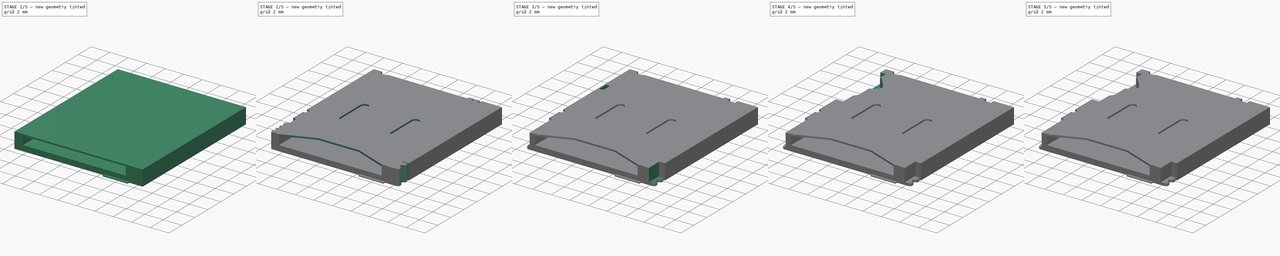
[diagram: build sequence overview — one tinted view per stage of 5, left to right]
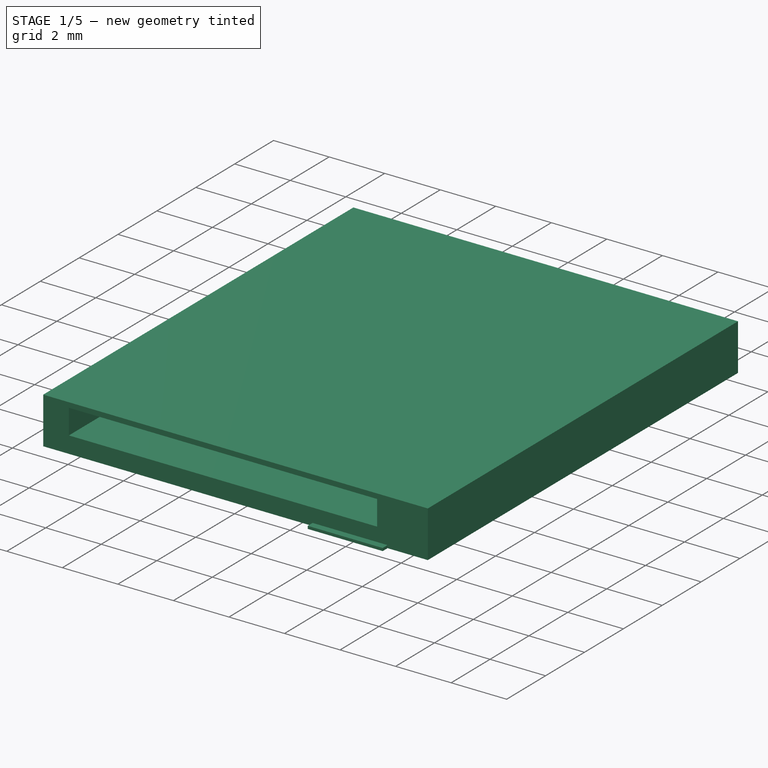
[diagram: stage 1 of 5 — iso view after this stage's code; geometry added in this stage tinted green]
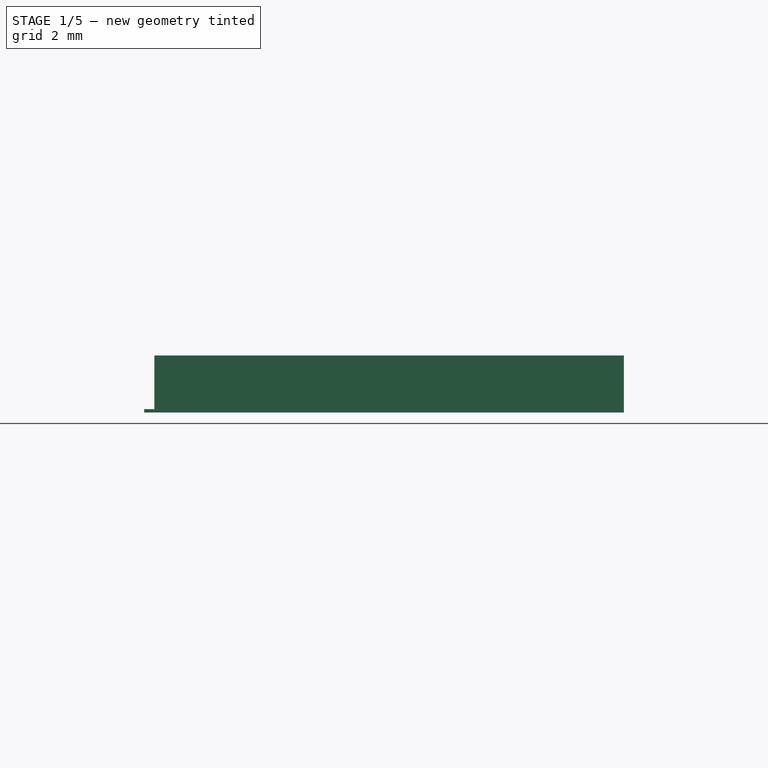
[diagram: stage 1 of 5 — front view after this stage's code; geometry added in this stage tinted green]
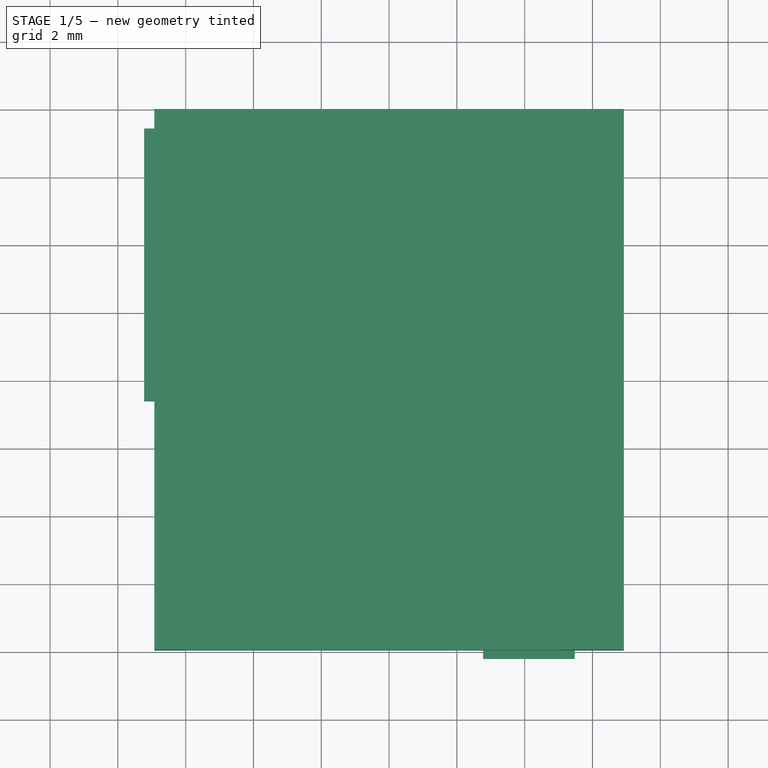
[diagram: stage 1 of 5 — top view after this stage's code; geometry added in this stage tinted green]
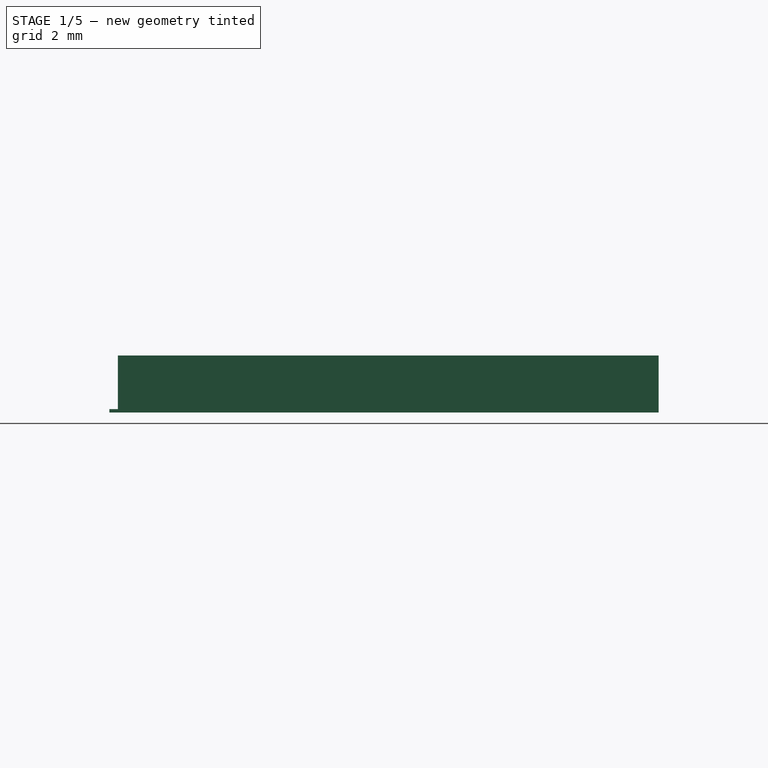
[diagram: stage 1 of 5 — right view after this stage's code; geometry added in this stage tinted green]
FCSTD DOCUMENT  (FreeCAD 0.16R6431 (Git))
Label: Hirose_DM3AT-SF-PEJM5
License: All rights reserved
LicenseURL: http://en.wikipedia.org/wiki/All_rights_reserved
objects: Sketcher::SketchObject×21, PartDesign::Pocket×9, PartDesign::Pad×4, Part::Sweep×2, Part::Feature×2, Part::FeaturePython×1, Part::MultiFuse×1
note: 53 computed .brp shape members not serialized (recipe doc carries the construction recipe); baked Part::Feature solids carry a one-line shape summary decoded from their .brp

FEATURE [Sketcher::SketchObject] Sketch
  sketch-geometry (4):
    g0: LineSegment StartX=-6.925 StartY=0 StartZ=0 EndX=6.925 EndY=0 EndZ=0
    g1: LineSegment StartX=6.925 StartY=0 StartZ=0 EndX=6.925 EndY=-15.95 EndZ=0
    g2: LineSegment StartX=6.925 StartY=-15.95 StartZ=0 EndX=-6.925 EndY=-15.95 EndZ=0
    g3: LineSegment StartX=-6.925 StartY=-15.95 StartZ=0 EndX=-6.925 EndY=0 EndZ=0
  constraints (11):
    c: Coincident(g0,g1)
    c: Coincident(g1,g2)
    c: Coincident(g2,g3)
    c: Coincident(g3,g0)
    c: Horizontal(g0)
    c: Horizontal(g2)
    c: Vertical(g1)
    c: Vertical(g3)
    c: DistanceX(g0) = 13.85
    c: DistanceY(g1) = -15.95
    c: Symmetric(g0,g0,g-1)
FEATURE [PartDesign::Pad] Pad  label="Base_Pad"
  Length = 1.68
  Length2 = 100
  Sketch = -> Sketch
  Type = 0
FEATURE [Sketcher::SketchObject] Sketch001  label="Card_Cut"
  Placement = pos=(0,-15.95,0) rot=(1,0,0;1.5708rad)
  Support = -> Pad [Face3]
  sketch-geometry (4):
    g0: LineSegment StartX=-6 StartY=1.5 StartZ=0 EndX=5.1 EndY=1.5 EndZ=0
    g1: LineSegment StartX=5.1 StartY=1.5 StartZ=0 EndX=5.1 EndY=0.6 EndZ=0
    g2: LineSegment StartX=5.1 StartY=0.6 StartZ=0 EndX=-6 EndY=0.6 EndZ=0
    g3: LineSegment StartX=-6 StartY=0.6 StartZ=0 EndX=-6 EndY=1.5 EndZ=0
  constraints (12):
    c: Coincident(g0,g1)
    c: Coincident(g1,g2)
    c: Coincident(g2,g3)
    c: Coincident(g3,g0)
    c: Horizontal(g0)
    c: Horizontal(g2)
    c: Vertical(g1)
    c: Vertical(g3)
    c: DistanceX(g0) = 11.1
    c: DistanceY(g3) = 0.9
    c: DistanceX(g-1,g2) = -6
    c: DistanceY(g-1,g2) = 0.6
FEATURE [PartDesign::Pocket] Pocket  label="Card_Cut_Pocket"
  Length = 14.2
  Sketch = -> Sketch001
  Type = 0
FEATURE [Part::Feature] sc_Fusion  label="Fusion_copy"
  shape: bbox 5.453 x 6.28 x 0.6859 mm, 263 faces (baked)
FEATURE [Sketcher::SketchObject] Sketch020  label="KeepOutAreas"
  sketch-geometry (18):
    g0: LineSegment StartX=2.775 StartY=-14.8 StartZ=0 EndX=5.475 EndY=-14.8 EndZ=0
    g1: LineSegment StartX=5.475 StartY=-14.8 StartZ=0 EndX=5.475 EndY=-16.2 EndZ=0
    g2: LineSegment StartX=5.475 StartY=-16.2 StartZ=0 EndX=2.775 EndY=-16.2 EndZ=0
    g3: LineSegment StartX=2.775 StartY=-16.2 StartZ=0 EndX=2.775 EndY=-14.8 EndZ=0
    g4: LineSegment StartX=-5.425 StartY=-6.4 StartZ=0 EndX=-6.125 EndY=-6.4 EndZ=0
    g5: LineSegment StartX=-6.125 StartY=-6.4 StartZ=0 EndX=-6.125 EndY=-14 EndZ=0
    g6: LineSegment StartX=-6.125 StartY=-14 StartZ=0 EndX=-5.425 EndY=-14 EndZ=0
    g7: LineSegment StartX=-5.425 StartY=-14 StartZ=0 EndX=-5.425 EndY=-6.4 EndZ=0
    g8: LineSegment StartX=-5.425 StartY=-5.1 StartZ=0 EndX=3.275 EndY=-5.1 EndZ=0
    g9: LineSegment StartX=3.275 StartY=-5.1 StartZ=0 EndX=3.275 EndY=-6.7 EndZ=0
    g10: LineSegment StartX=3.275 StartY=-6.7 StartZ=0 EndX=-5.425 EndY=-6.7 EndZ=0
    g11: LineSegment StartX=-5.425 StartY=-6.7 StartZ=0 EndX=-5.425 EndY=-5.1 EndZ=0
    g12: LineSegment StartX=-7.225 StartY=-0.55 StartZ=0 EndX=-6.475 EndY=-0.55 EndZ=0
    g13: LineSegment StartX=-6.475 StartY=-0.55 StartZ=0 EndX=-6.475 EndY=-8.6 EndZ=0
    g14: LineSegment StartX=-6.475 StartY=-8.6 StartZ=0 EndX=-7.225 EndY=-8.6 EndZ=0
    g15: LineSegment StartX=-7.225 StartY=-8.6 StartZ=0 EndX=-7.225 EndY=-0.55 EndZ=0
    g16: LineSegment [constr] StartX=2.775 StartY=0 StartZ=0 EndX=2.775 EndY=-18 EndZ=0
    g17: LineSegment [constr] StartX=0 StartY=0 StartZ=0 EndX=0 EndY=-0.7 EndZ=0
  constraints (55):
    c: Coincident(g0,g1)
    c: Coincident(g1,g2)
    c: Coincident(g2,g3)
    c: Coincident(g3,g0)
    c: Horizontal(g0)
    c: Horizontal(g2)
    c: Vertical(g1)
    c: Vertical(g3)
    c: Coincident(g4,g5)
    c: Coincident(g5,g6)
    c: Coincident(g6,g7)
    c: Coincident(g7,g4)
    c: Horizontal(g4)
    c: Horizontal(g6)
    c: Vertical(g5)
    c: Vertical(g7)
    c: Coincident(g8,g9)
    c: Coincident(g9,g10)
    c: Coincident(g10,g11)
    c: Coincident(g11,g8)
    c: Horizontal(g8)
    c: Horizontal(g10)
    c: Vertical(g9)
    c: Vertical(g11)
    c: Coincident(g12,g13)
    c: Coincident(g13,g14)
    c: Coincident(g14,g15)
    c: Coincident(g15,g12)
    c: Horizontal(g12)
    c: Horizontal(g14)
    c: Vertical(g13)
    c: Vertical(g15)
    c: DistanceX(g2) = -2.7
    c: DistanceY(g1) = -1.4
    c: Vertical(g16)
    c: DistanceX(g-1,g16) = 2.775
    c: PointOnObject(g16,g-1)
    c: DistanceY(g16) = -18
    c: PointOnObject(g2,g16)
    c: Vertical(g17)
    c: Coincident(g17,g-1)
    c: DistanceY(g17) = -0.7
    c: DistanceY(g17,g0) = -14.1
    c: DistanceX(g8,g16) = -0.5
    c: DistanceX(g8,g16) = 8.2
    c: DistanceX(g4,g16) = 8.9
    c: PointOnObject(g4,g11)
    c: DistanceX(g12,g16) = 9.25
    c: DistanceX(g16,g12) = -10
    c: DistanceY(g17,g12) = 0.15
    c: DistanceY(g14,g17) = 7.9
    c: DistanceY(g4,g17) = 5.7
    c: DistanceY(g8,g17) = 4.4
    c: DistanceY(g9,g17) = 6
    c: DistanceY(g5,g17) = 13.3
FEATURE [PartDesign::Pad] Pad003  label="KeepOutAreas_Pad"
  Length = 0.1
  Length2 = 100
  Sketch = -> Sketch020
  Type = 0
FEATURE [Sketcher::SketchObject] Sketch021  label="KeepOutAreas_Zeroed"
  ExternalGeometry = -> [Pad003]
  Placement = pos=(0,0,0.1) rot=(0,0,1;0rad)
  Support = -> Pad003 [Face12]
  constraints (15):
    c: DistanceY(g-1,g-14) = -5.1
    c: DistanceY(g-1,g-14) = -6.7
    c: DistanceY(g-1,g-13) = -0.55
    c: DistanceY(g-1,g-4) = -8.6
    c: DistanceY(g-1,g-6) = -6.4
    c: DistanceY(g-1,g-11) = -14
    c: DistanceY(g-1,g-17) = -14.8
    c: DistanceY(g-1,g-16) = -16.2
    c: DistanceX(g-1,g-17) = 5.475
    c: DistanceX(g-1,g-18) = 2.775
    c: DistanceX(g-1,g-13) = -7.225
    c: DistanceX(g-1,g-13) = -6.475
    c: DistanceX(g-1,g-9) = -5.425
    c: DistanceX(g-1,g-14) = 3.275
    c: DistanceX(g-1,g-6) = -6.125
FEATURE [Sketcher::SketchObject] Sketch022  label="SilkOutline"
  sketch-geometry (4):
    g0: LineSegment StartX=-7 StartY=0 StartZ=0 EndX=7 EndY=0 EndZ=0
    g1: LineSegment StartX=7 StartY=0 StartZ=0 EndX=7 EndY=-16 EndZ=0
    g2: LineSegment StartX=7 StartY=-16 StartZ=0 EndX=-7 EndY=-16 EndZ=0
    g3: LineSegment StartX=-7 StartY=-16 StartZ=0 EndX=-7 EndY=0 EndZ=0
  constraints (12):
    c: Coincident(g0,g1)
    c: Coincident(g1,g2)
    c: Coincident(g2,g3)
    c: Coincident(g3,g0)
    c: Horizontal(g0)
    c: Horizontal(g2)
    c: Vertical(g1)
    c: Vertical(g3)
    c: DistanceX(g1) = 7
    c: DistanceY(g1) = -16
    c: DistanceX(g2) = -7
    c: PointOnObject(g0,g-1)
FEATURE [Sketcher::SketchObject] Sketch023  label="SD-Card_Positions"
  sketch-geometry (9):
    g0: LineSegment StartX=-5.925 StartY=-2.55 StartZ=0 EndX=5.075 EndY=-2.55 EndZ=0
    g1: LineSegment StartX=5.075 StartY=-2.55 StartZ=0 EndX=5.075 EndY=-17.55 EndZ=0
    g2: LineSegment StartX=5.075 StartY=-17.55 StartZ=0 EndX=-5.925 EndY=-17.55 EndZ=0
    g3: LineSegment StartX=-5.925 StartY=-17.55 StartZ=0 EndX=-5.925 EndY=-2.55 EndZ=0
    g4: LineSegment [constr] StartX=-0.425 StartY=0 StartZ=0 EndX=-0.425 EndY=-25 EndZ=0
    g5: LineSegment [constr] StartX=-6.925 StartY=0 StartZ=0 EndX=6.925 EndY=0 EndZ=0
    g6: GeomPoint [constr] X=-0.425 Y=-17.55 Z=0
    g7: LineSegment [constr] StartX=-5.925 StartY=-16.75 StartZ=0 EndX=5.075 EndY=-16.75 EndZ=0
    g8: LineSegment [constr] StartX=-5.925 StartY=-21.55 StartZ=0 EndX=5.075 EndY=-21.55 EndZ=0
  constraints (30):
    c: Coincident(g0,g1)
    c: Coincident(g1,g2)
    c: Coincident(g2,g3)
    c: Coincident(g3,g0)
    c: Horizontal(g0)
    c: Horizontal(g2)
    c: Vertical(g1)
    c: Vertical(g3)
    c: Vertical(g4)
    c: Horizontal(g5)
    c: DistanceX(g5) = 13.85
    c: DistanceX(g4,g5) = 7.35
    c: PointOnObject(g4,g5)
    c: Symmetric(g5,g5,g-1)
    c: DistanceY(g4) = -25
    c: DistanceX(g2) = -11
    c: Symmetric(g2,g2,g6)
    c: PointOnObject(g6,g4)
    c: DistanceY(g3) = 15
    c: DistanceY(g-1,g1) = -17.55
    c: Horizontal(g7)
    c: PointOnObject(g7,g3)
    c: PointOnObject(g7,g1)
    c: DistanceY(g-1,g7) = -16.75
    c: Horizontal(g8)
    c: PointOnObject(g8,g1)
    c: PointOnObject(g8,g3)
    c: DistanceY(g-1,g8) = -21.55
    c: DistanceX(g-1,g8) = -5.925
    c: DistanceX(g-1,g8) = 5.075
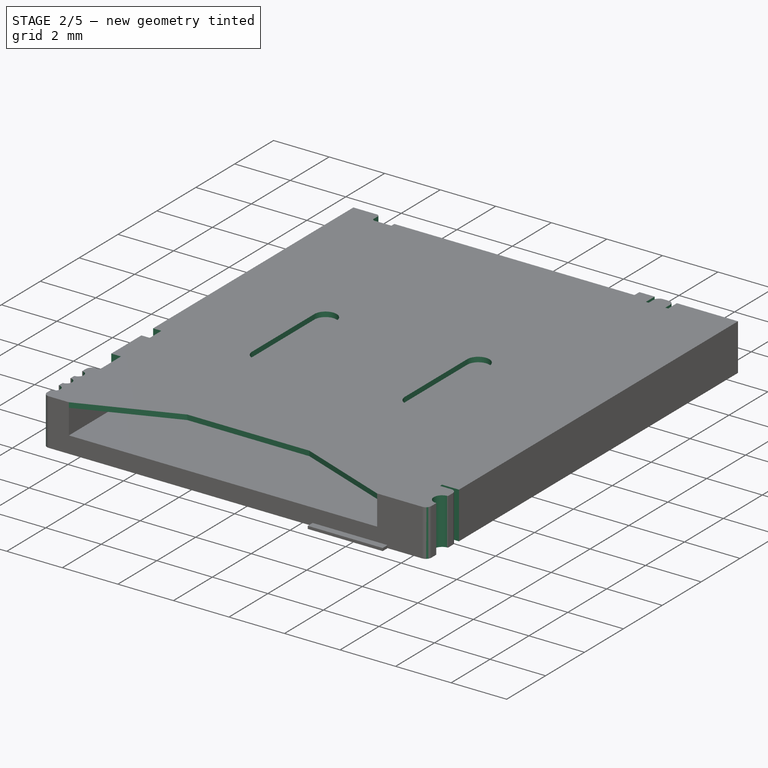
[diagram: stage 2 of 5 — iso view after this stage's code; geometry added in this stage tinted green]
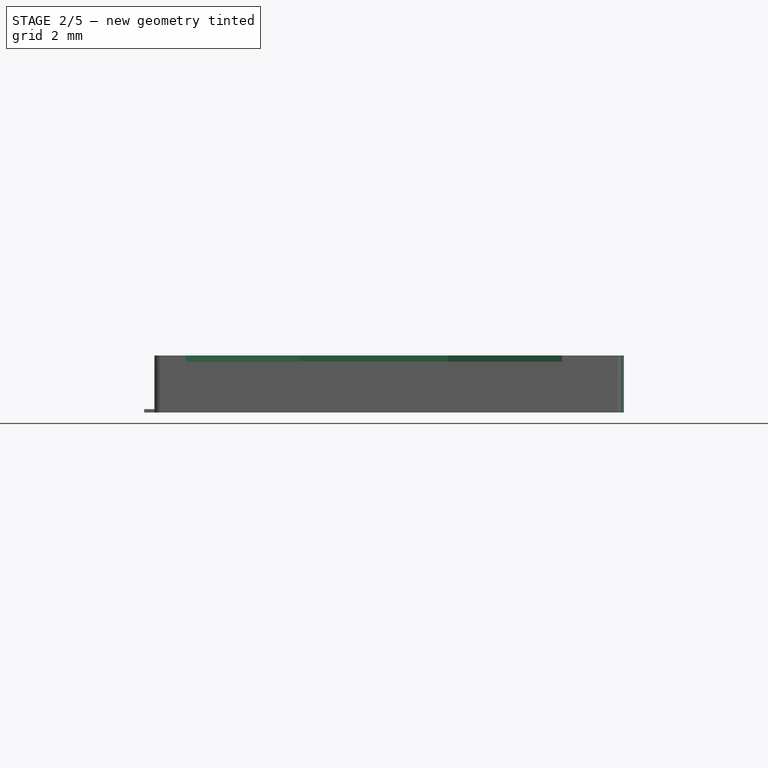
[diagram: stage 2 of 5 — front view after this stage's code; geometry added in this stage tinted green]
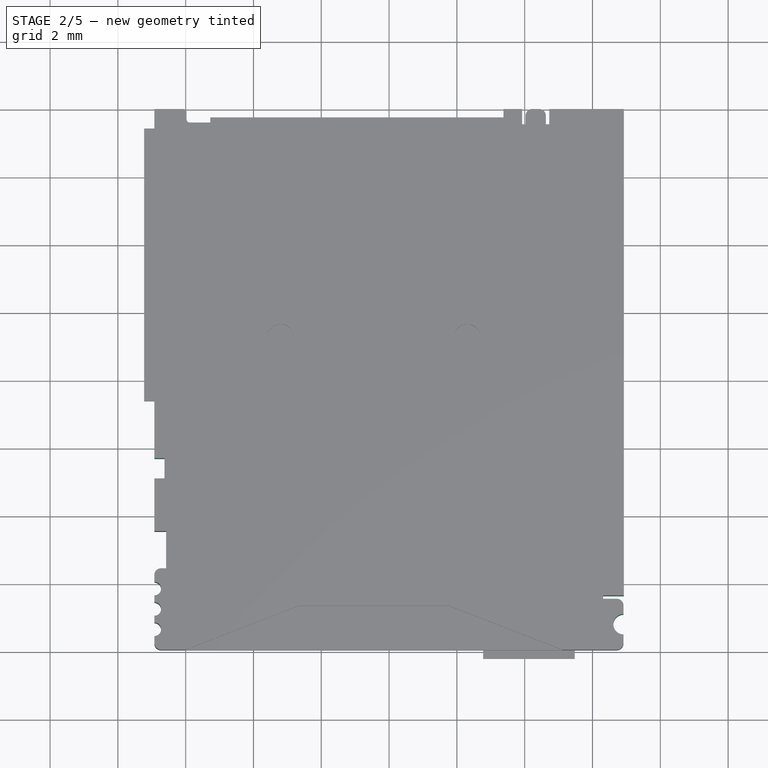
[diagram: stage 2 of 5 — top view after this stage's code; geometry added in this stage tinted green]
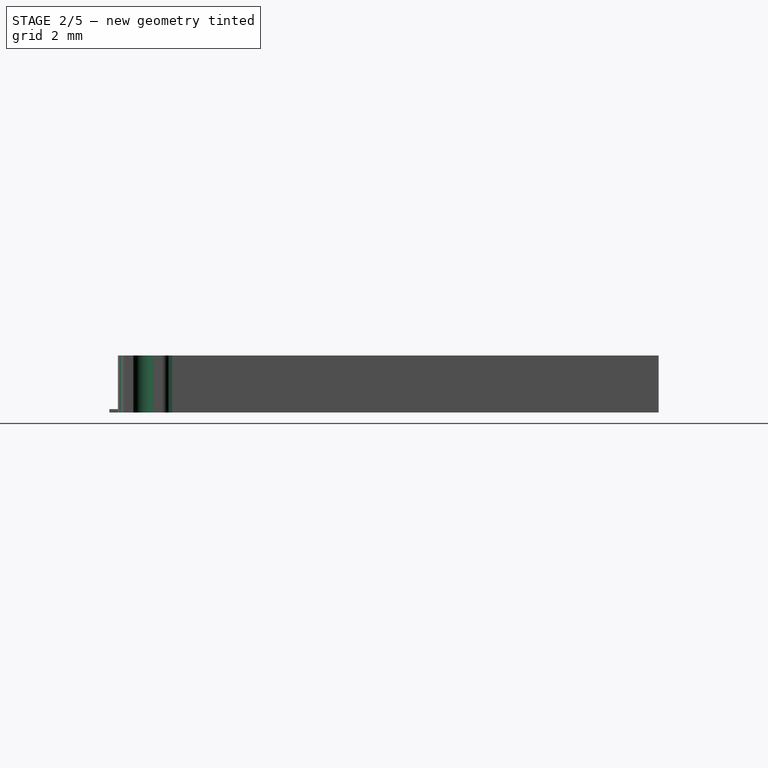
[diagram: stage 2 of 5 — right view after this stage's code; geometry added in this stage tinted green]
FEATURE [Sketcher::SketchObject] Sketch002  label="PinCutOut1"
  Placement = pos=(0,0,1.68) rot=(0,0,1;0rad)
  Support = -> Pocket [Face5]
  sketch-geometry (14):
    g0: LineSegment StartX=-6.075 StartY=0 StartZ=0 EndX=3.375 EndY=0 EndZ=0
    g1: LineSegment StartX=3.375 StartY=0 StartZ=0 EndX=3.375 EndY=-0.25 EndZ=0
    g2: LineSegment StartX=3.375 StartY=-0.25 StartZ=0 EndX=-5.275 EndY=-0.25 EndZ=0
    g3: ArcOfCircle CenterX=-6.075 CenterY=-0.1 CenterZ=0 NormalX=0 NormalY=0 NormalZ=1 Radius=0.1 StartAngle=0 EndAngle=1.5708
    g4: LineSegment [constr] StartX=-6.075 StartY=0 StartZ=0 EndX=-6.075 EndY=-0.4 EndZ=0
    g5: LineSegment StartX=-5.975 StartY=-0.1 StartZ=0 EndX=-5.975 EndY=-0.3 EndZ=0
    g6: LineSegment StartX=-5.875 StartY=-0.4 StartZ=0 EndX=-5.275 EndY=-0.4 EndZ=0
    g7: LineSegment StartX=-5.275 StartY=-0.25 StartZ=0 EndX=-5.275 EndY=-0.4 EndZ=0
    g8: ArcOfCircle CenterX=-5.875 CenterY=-0.3 CenterZ=0 NormalX=0 NormalY=0 NormalZ=1 Radius=0.1 StartAngle=3.14159 EndAngle=4.71239
    g9: LineSegment [constr] StartX=-5.975 StartY=-0.3 StartZ=0 EndX=-5.875 EndY=-0.3 EndZ=0
    g10: LineSegment StartX=-6.925 StartY=-10.3 StartZ=0 EndX=-6.625 EndY=-10.3 EndZ=0
    g11: LineSegment StartX=-6.625 StartY=-10.3 StartZ=0 EndX=-6.625 EndY=-10.9 EndZ=0
    g12: LineSegment StartX=-6.625 StartY=-10.9 StartZ=0 EndX=-6.925 EndY=-10.9 EndZ=0
    g13: LineSegment StartX=-6.925 StartY=-10.9 StartZ=0 EndX=-6.925 EndY=-10.3 EndZ=0
  constraints (43):
    c: Coincident(g0,g1)
    c: Coincident(g1,g2)
    c: Horizontal(g0)
    c: Horizontal(g2)
    c: Vertical(g1)
    c: DistanceY(g1) = -0.25
    c: DistanceX(g-1,g1) = 3.375
    c: PointOnObject(g0,g-1)
    c: DistanceX(g2) = -8.65
    c: Radius(g3) = 0.1
    c: Angle(g3) = 1.5708
    c: Coincident(g3,g0)
    c: Vertical(g4)
    c: Coincident(g4,g0)
    c: PointOnObject(g3,g4)
    c: DistanceY(g4) = -0.4
    c: Coincident(g5,g3)
    c: Vertical(g5)
    c: Horizontal(g6)
    c: Vertical(g7)
    c: Coincident(g6,g7)
    c: Coincident(g7,g2)
    c: Angle(g8) = 1.5708
    c: Radius(g8) = 0.1
    c: Coincident(g6,g8)
    c: Coincident(g8,g5)
    c: PointOnObject(g4,g6)
    c: Horizontal(g9)
    c: Coincident(g9,g5)
    c: Coincident(g8,g9)
    c: DistanceX(g3,g2) = 0.7
    c: Coincident(g10,g11)
    c: Coincident(g11,g12)
    c: Coincident(g12,g13)
    c: Coincident(g13,g10)
    c: Horizontal(g10)
    c: Horizontal(g12)
    c: Vertical(g11)
    c: Vertical(g13)
    c: DistanceY(g13) = 0.6
    c: DistanceX(g10) = 0.3
    c: DistanceY(g-1,g10) = -10.3
    c: DistanceX(g-1,g10) = -6.625
FEATURE [PartDesign::Pocket] Pocket001  label="PinCutOut1_Pocket"
  Length = 5
  Sketch = -> Sketch002
  Type = 1
FEATURE [Sketcher::SketchObject] Sketch003  label="PinCutOut2"
  Placement = pos=(0,0,0) rot=(1,0,0;3.14159rad)
  Support = -> Pocket001 [Face2]
  sketch-geometry (4):
    g0: LineSegment StartX=-6.525 StartY=0.85 StartZ=0 EndX=3.375 EndY=0.85 EndZ=0
    g1: LineSegment StartX=3.375 StartY=0.85 StartZ=0 EndX=3.375 EndY=0 EndZ=0
    g2: LineSegment StartX=3.375 StartY=0 StartZ=0 EndX=-6.525 EndY=0 EndZ=0
    g3: LineSegment StartX=-6.525 StartY=0 StartZ=0 EndX=-6.525 EndY=0.85 EndZ=0
  constraints (12):
    c: Coincident(g0,g1)
    c: Coincident(g1,g2)
    c: Coincident(g2,g3)
    c: Coincident(g3,g0)
    c: Horizontal(g0)
    c: Horizontal(g2)
    c: Vertical(g1)
    c: Vertical(g3)
    c: DistanceX(g2) = -9.9
    c: DistanceY(g3) = 0.85
    c: PointOnObject(g1,g-1)
    c: DistanceX(g-1,g0) = 3.375
FEATURE [PartDesign::Pocket] Pocket002  label="PinCutOut2_Pocket"
  Length = 1
  Sketch = -> Sketch003
  Type = 0
FEATURE [Sketcher::SketchObject] Sketch004  label="TopCut"
  ExternalGeometry = -> [Pocket002]
  Placement = pos=(0,0,1.68) rot=(0,0,1;0rad)
  Support = -> Pocket002 [Face6]
  sketch-geometry (16):
    g0: LineSegment StartX=-6 StartY=-15.95 StartZ=0 EndX=5.1 EndY=-15.95 EndZ=0
    g1: LineSegment StartX=-6 StartY=-15.95 StartZ=0 EndX=-2.65 EndY=-14.65 EndZ=0
    g2: LineSegment StartX=-2.65 StartY=-14.65 StartZ=0 EndX=1.75 EndY=-14.65 EndZ=0
    g3: LineSegment StartX=1.75 StartY=-14.65 StartZ=0 EndX=5.1 EndY=-15.95 EndZ=0
    g4: ArcOfCircle CenterX=-3.2 CenterY=-6.75 CenterZ=0 NormalX=0 NormalY=0 NormalZ=1 Radius=0.4 StartAngle=1.88508e-06 EndAngle=3.14159
    g5: ArcOfCircle CenterX=-3.2 CenterY=-9.95 CenterZ=0 NormalX=0 NormalY=0 NormalZ=1 Radius=0.4 StartAngle=3.14159 EndAngle=6.28318
    g6: LineSegment StartX=-3.6 StartY=-6.75 StartZ=0 EndX=-3.6 EndY=-9.95 EndZ=0
    g7: LineSegment StartX=-2.8 StartY=-6.75 StartZ=0 EndX=-2.8 EndY=-9.95 EndZ=0
    g8: ArcOfCircle CenterX=2.3 CenterY=-6.75 CenterZ=0 NormalX=0 NormalY=0 NormalZ=1 Radius=0.4 StartAngle=8.415e-09 EndAngle=3.14159
    g9: ArcOfCircle CenterX=2.3 CenterY=-9.95 CenterZ=0 NormalX=0 NormalY=0 NormalZ=1 Radius=0.4 StartAngle=3.14159 EndAngle=6.28319
    g10: LineSegment StartX=1.9 StartY=-6.75 StartZ=0 EndX=1.9 EndY=-9.95 EndZ=0
    g11: LineSegment StartX=2.7 StartY=-6.75 StartZ=0 EndX=2.7 EndY=-9.95 EndZ=0
    g12: LineSegment [constr] StartX=-3.2 StartY=-6.75 StartZ=0 EndX=2.3 EndY=-6.75 EndZ=0
    g13: LineSegment [constr] StartX=-3.6 StartY=-9.95 StartZ=0 EndX=-2.8 EndY=-9.95 EndZ=0
    g14: LineSegment [constr] StartX=1.9 StartY=-9.95 StartZ=0 EndX=2.7 EndY=-9.95 EndZ=0
    g15: LineSegment [constr] StartX=-0.45 StartY=-15.95 StartZ=0 EndX=-0.45 EndY=-6.75 EndZ=0
  constraints (47):
    c: Coincident(g0,g1)
    c: Coincident(g3,g0)
    c: Coincident(g2,g1)
    c: Coincident(g3,g2)
    c: Coincident(g6,g4)
    c: Coincident(g4,g7)
    c: Coincident(g6,g5)
    c: Coincident(g13,g5)
    c: Coincident(g6,g13)
    c: Coincident(g13,g7)
    c: Coincident(g8,g10)
    c: Coincident(g8,g11)
    c: Coincident(g9,g10)
    c: Coincident(g9,g11)
    c: Coincident(g9,g14)
    c: Symmetric(g0,g0,g15)
    c: DistanceY(g15,g2) = 1.3
    c: Horizontal(g2)
    c: Horizontal(g0)
    c: Equal(g3,g1)
    c: DistanceX(g2) = 4.4
    c: Vertical(g15)
    c: Horizontal(g12)
    c: DistanceY(g15) = 9.2
    c: Symmetric(g12,g12,g15)
    c: Coincident(g12,g8)
    c: Coincident(g4,g12)
    c: Equal(g13,g14)
    c: Vertical(g10)
    c: Vertical(g11)
    c: Vertical(g6)
    c: Vertical(g7)
    c: Tangent(g4,g6)
    c: Tangent(g4,g7)
    c: Tangent(g5,g6)
    c: Tangent(g5,g7)
    c: Coincident(g14,g9)
    c: Tangent(g10,g9)
    c: Tangent(g11,g9)
    c: Tangent(g8,g11)
    c: Tangent(g8,g10)
    c: DistanceX(g14) = 0.8
    c: DistanceY(g11) = -3.2
    c: DistanceX(g12) = 5.5
    c: Equal(g7,g11)
    c: Coincident(g-3,g0)
    c: Coincident(g-3,g0)
FEATURE [PartDesign::Pocket] Pocket003  label="TopCut_Pocket"
  Length = 5
  Sketch = -> Sketch004
  Type = 2
FEATURE [Sketcher::SketchObject] Sketch007  label="ShellPins"
  ExternalGeometry = -> [Pocket003]
  Placement = pos=(0,0,1.68) rot=(0,0,1;0rad)
  Support = -> Pocket003 [Face6]
  sketch-geometry (45):
    g0: ArcOfCircle CenterX=6.915 CenterY=-15.2 CenterZ=0 NormalX=0 NormalY=0 NormalZ=1 Radius=0.3 StartAngle=1.5708 EndAngle=4.71239
    g1: ArcOfCircle CenterX=6.715 CenterY=-14.65 CenterZ=0 NormalX=0 NormalY=0 NormalZ=1 Radius=0.2 StartAngle=0 EndAngle=1.5708
    g2: LineSegment [constr] StartX=6.915 StartY=-14.9 StartZ=0 EndX=6.915 EndY=-15.5 EndZ=0
    g3: LineSegment StartX=6.915 StartY=-14.65 StartZ=0 EndX=6.915 EndY=-14.9 EndZ=0
    g4: LineSegment StartX=6.915 StartY=-15.5 StartZ=0 EndX=6.915 EndY=-15.75 EndZ=0
    g5: LineSegment [constr] StartX=6.715 StartY=-14.45 StartZ=0 EndX=6.715 EndY=-15.95 EndZ=0
    g6: ArcOfCircle CenterX=6.715 CenterY=-15.75 CenterZ=0 NormalX=0 NormalY=0 NormalZ=1 Radius=0.2 StartAngle=4.71239 EndAngle=6.2832
    g7: LineSegment StartX=6.715 StartY=-15.95 StartZ=0 EndX=6.715 EndY=-16.45 EndZ=0
    g8: LineSegment StartX=6.715 StartY=-16.45 StartZ=0 EndX=7.415 EndY=-16.45 EndZ=0
    g9: LineSegment StartX=7.415 StartY=-16.45 StartZ=0 EndX=7.415 EndY=-14.35 EndZ=0
    g10: LineSegment StartX=7.415 StartY=-14.35 StartZ=0 EndX=6.315 EndY=-14.35 EndZ=0
    g11: LineSegment StartX=6.315 StartY=-14.35 StartZ=0 EndX=6.315 EndY=-14.45 EndZ=0
    g12: LineSegment StartX=6.315 StartY=-14.45 StartZ=0 EndX=6.715 EndY=-14.45 EndZ=0
    g13: ArcOfCircle CenterX=-6.925 CenterY=-14.75 CenterZ=0 NormalX=0 NormalY=0 NormalZ=1 Radius=0.2 StartAngle=4.71239 EndAngle=7.85398
    g14: ArcOfCircle CenterX=-6.925 CenterY=-15.35 CenterZ=0 NormalX=0 NormalY=0 NormalZ=1 Radius=0.2 StartAngle=4.71239 EndAngle=7.85398
    g15: ArcOfCircle CenterX=-6.925 CenterY=-14.15 CenterZ=0 NormalX=0 NormalY=0 NormalZ=1 Radius=0.2 StartAngle=4.71239 EndAngle=7.85398
    g16: LineSegment StartX=-6.925 StartY=-13.75 StartZ=0 EndX=-6.925 EndY=-13.95 EndZ=0
    g17: LineSegment [constr] StartX=-6.925 StartY=-13.95 StartZ=0 EndX=-6.925 EndY=-14.35 EndZ=0
    g18: LineSegment StartX=-6.925 StartY=-14.35 StartZ=0 EndX=-6.925 EndY=-14.55 EndZ=0
    g19: LineSegment [constr] StartX=-6.925 StartY=-14.55 StartZ=0 EndX=-6.925 EndY=-14.95 EndZ=0
    g20: LineSegment StartX=-6.925 StartY=-14.95 StartZ=0 EndX=-6.925 EndY=-15.15 EndZ=0
    g21: LineSegment [constr] StartX=-6.925 StartY=-15.15 StartZ=0 EndX=-6.925 EndY=-15.55 EndZ=0
    g22: LineSegment StartX=-6.925 StartY=-15.55 StartZ=0 EndX=-6.925 EndY=-15.75 EndZ=0
    g23: LineSegment [constr] StartX=-6.725 StartY=-13.55 StartZ=0 EndX=-6.725 EndY=-15.95 EndZ=0
    g24: ArcOfCircle CenterX=-6.725 CenterY=-13.75 CenterZ=0 NormalX=0 NormalY=0 NormalZ=1 Radius=0.2 StartAngle=1.5708 EndAngle=3.14159
    g25: ArcOfCircle CenterX=-6.725 CenterY=-15.75 CenterZ=0 NormalX=0 NormalY=0 NormalZ=1 Radius=0.2 StartAngle=3.14159 EndAngle=4.71239
    g26: LineSegment [constr] StartX=-6.925 StartY=-13.75 StartZ=0 EndX=-6.725 EndY=-13.75 EndZ=0
    g27: LineSegment [constr] StartX=-6.925 StartY=-15.75 StartZ=0 EndX=-6.725 EndY=-15.75 EndZ=0
    g28: LineSegment StartX=-6.725 StartY=-13.55 StartZ=0 EndX=-6.575 EndY=-13.55 EndZ=0
    g29: LineSegment StartX=-6.575 StartY=-13.55 StartZ=0 EndX=-6.575 EndY=-12.45 EndZ=0
    g30: LineSegment StartX=-6.575 StartY=-12.45 StartZ=0 EndX=-7.725 EndY=-12.45 EndZ=0
    g31: LineSegment StartX=-7.725 StartY=-12.45 StartZ=0 EndX=-7.725 EndY=-16.45 EndZ=0
    g32: LineSegment StartX=-7.725 StartY=-16.45 StartZ=0 EndX=-6.725 EndY=-16.45 EndZ=0
    g33: LineSegment StartX=-6.725 StartY=-16.45 StartZ=0 EndX=-6.725 EndY=-15.95 EndZ=0
    g34: LineSegment StartX=3.925 StartY=-0.45 StartZ=0 EndX=3.925 EndY=1 EndZ=0
    g35: LineSegment StartX=3.925 StartY=1 StartZ=0 EndX=4.725 EndY=1 EndZ=0
    g36: LineSegment StartX=4.725 StartY=1 StartZ=0 EndX=4.725 EndY=-0.45 EndZ=0
    g37: ArcOfCircle CenterX=4.225 CenterY=-0.2 CenterZ=0 NormalX=0 NormalY=0 NormalZ=1 Radius=0.2 StartAngle=1.5708 EndAngle=3.14159
    g38: ArcOfCircle CenterX=4.425 CenterY=-0.2 CenterZ=0 NormalX=0 NormalY=0 NormalZ=1 Radius=0.2 StartAngle=0 EndAngle=1.5708
    g39: LineSegment [constr] StartX=4.025 StartY=-0.2 StartZ=0 EndX=4.625 EndY=-0.2 EndZ=0
    g40: LineSegment StartX=4.225 StartY=0 StartZ=0 EndX=4.425 EndY=0 EndZ=0
    g41: LineSegment StartX=4.725 StartY=-0.45 StartZ=0 EndX=4.625 EndY=-0.45 EndZ=0
    g42: LineSegment StartX=4.625 StartY=-0.45 StartZ=0 EndX=4.625 EndY=-0.2 EndZ=0
    g43: LineSegment StartX=3.925 StartY=-0.45 StartZ=0 EndX=4.025 EndY=-0.45 EndZ=0
    g44: LineSegment StartX=4.025 StartY=-0.45 StartZ=0 EndX=4.025 EndY=-0.2 EndZ=0
  constraints (138):
    c: Radius(g0) = 0.3
    c: Radius(g1) = 0.2
    c: Vertical(g2)
    c: Vertical(g3)
    c: Vertical(g4)
    c: Coincident(g0,g2)
    c: Coincident(g0,g2)
    c: PointOnObject(g0,g2)
    c: Coincident(g0,g3)
    c: Coincident(g0,g4)
    c: Equal(g4,g3)
    c: Vertical(g5)
    c: Coincident(g1,g5)
    c: PointOnObject(g1,g5)
    c: Coincident(g1,g3)
    c: Equal(g6,g1)
    c: Coincident(g6,g5)
    c: PointOnObject(g6,g5)
    c: Coincident(g4,g6)
    c: DistanceY(g5) = -1.5
    c: Vertical(g7)
    c: Coincident(g7,g8)
    c: Horizontal(g8)
    c: Coincident(g8,g9)
    c: Vertical(g9)
    c: Coincident(g9,g10)
    c: Horizontal(g10)
    c: Coincident(g10,g11)
    c: Vertical(g11)
    c: Coincident(g11,g12)
    c: Horizontal(g12)
    c: Coincident(g1,g12)
    c: DistanceX(g11,g1) = 0.6
    c: DistanceY(g11) = -0.1
    c: DistanceX(g4,g8) = 0.5
    c: DistanceY(g7) = -0.5
    c: Coincident(g7,g5)
    c: Angle(g1) = 1.5708
    c: Radius(g15) = 0.2
    c: Equal(g15,g13)
    c: Equal(g15,g14)
    c: Vertical(g16)
    c: Coincident(g16,g17)
    c: Vertical(g17)
    c: Coincident(g17,g18)
    c: Vertical(g18)
    c: Coincident(g18,g19)
    c: Vertical(g19)
    c: Coincident(g19,g20)
    c: Vertical(g20)
    c: Coincident(g20,g21)
    c: Coincident(g21,g22)
    c: Vertical(g22)
    c: Vertical(g21)
    c: Equal(g18,g20)
    c: DistanceY(g18) = -0.2
    c: Equal(g22,g16)
    c: Coincident(g15,g16)
    c: Coincident(g15,g17)
    c: PointOnObject(g15,g17)
    c: Coincident(g13,g18)
    c: Coincident(g13,g19)
    c: PointOnObject(g13,g19)
    c: Coincident(g14,g20)
    c: Coincident(g14,g21)
    c: PointOnObject(g14,g21)
    c: Vertical(g23)
    c: Coincident(g25,g23)
    c: PointOnObject(g25,g23)
    c: Coincident(g24,g23)
    c: PointOnObject(g24,g23)
    c: Radius(g24) = 0.2
    c: Equal(g24,g25)
    c: Coincident(g25,g22)
    c: Coincident(g24,g16)
    c: Horizontal(g26)
    c: Coincident(g26,g16)
    c: PointOnObject(g24,g26)
    c: Coincident(g26,g24)
    c: Horizontal(g27)
    c: Coincident(g27,g25)
    c: Coincident(g27,g22)
    c: DistanceY(g23) = -2.4
    c: Horizontal(g28)
    c: Coincident(g28,g29)
    c: Vertical(g29)
    c: Coincident(g29,g30)
    c: Horizontal(g30)
    c: Coincident(g30,g31)
    c: Vertical(g31)
    c: Coincident(g31,g32)
    c: Horizontal(g32)
    c: Coincident(g32,g33)
    c: Vertical(g33)
    c: Coincident(g33,g23)
    c: Coincident(g23,g28)
    c: DistanceX(g28,g16) = -0.35
    c: DistanceY(g29) = 1.1
    c: DistanceY(g33) = 0.5
    c: DistanceX(g32) = 1
    c: Coincident(g34,g35)
    c: Coincident(g35,g36)
    c: Horizontal(g35)
    c: Vertical(g36)
    c: Vertical(g34)
    c: DistanceX(g35) = 0.8
    c: DistanceY(g36) = -1.45
    c: DistanceX(g-1,g34) = 3.925
    c: Horizontal(g39)
    c: Horizontal(g40)
    c: Coincident(g38,g39)
    c: Coincident(g40,g38)
    c: Coincident(g37,g39)
    c: Coincident(g37,g40)
    c: Tangent(g37,g40)
    c: PointOnObject(g38,g39)
    c: PointOnObject(g37,g39)
    c: Radius(g38) = 0.2
    c: DistanceX(g39) = 0.6
    c: Coincident(g36,g41)
    c: Horizontal(g41)
    c: Coincident(g41,g42)
    c: Vertical(g42)
    c: Horizontal(g43)
    c: Coincident(g43,g44)
    c: Vertical(g44)
    c: Coincident(g44,g37)
    c: Coincident(g42,g38)
    c: Equal(g41,g43)
    c: Tangent(g38,g40)
    c: Coincident(g34,g43)
    c: DistanceY(g38,g41) = -0.45
    c: PointOnObject(g43,g41)
    c: DistanceY(g-3,g36) = -0.45
    c: DistanceX(g4,g-3) = 0.01
    c: PointOnObject(g5,g-4)
    c: PointOnObject(g23,g-5)
    c: PointOnObject(g22,g-6)
FEATURE [PartDesign::Pocket] Pocket004  label="ShellPins_Pocket"
  Length = 5
  Sketch = -> Sketch007
  Type = 1
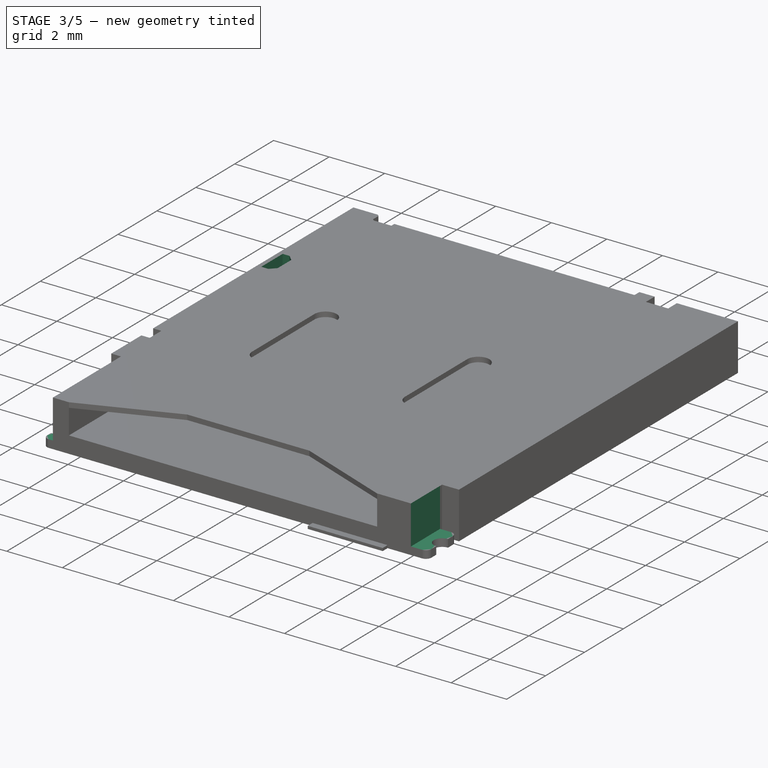
[diagram: stage 3 of 5 — iso view after this stage's code; geometry added in this stage tinted green]
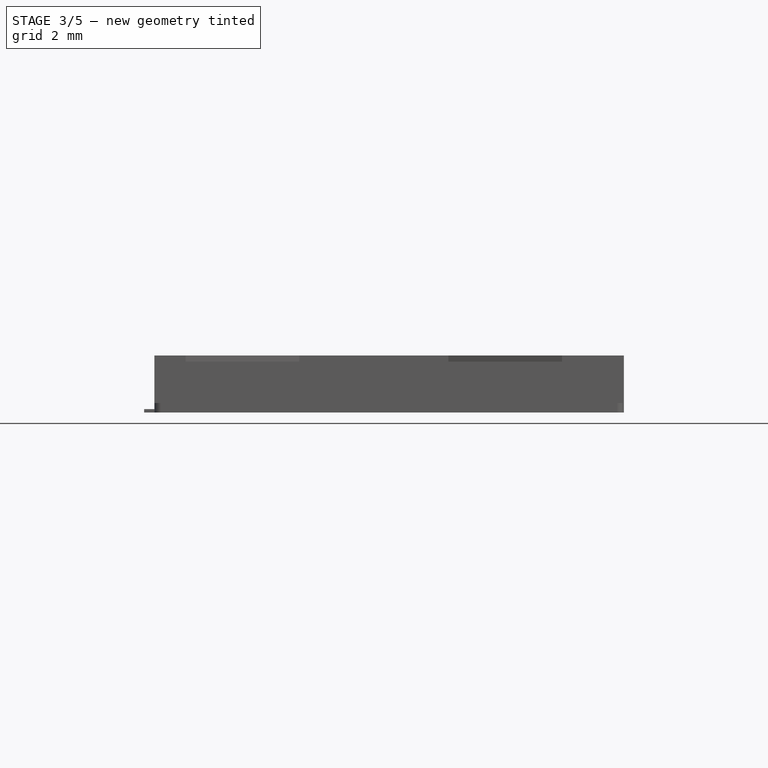
[diagram: stage 3 of 5 — front view after this stage's code; geometry added in this stage tinted green]
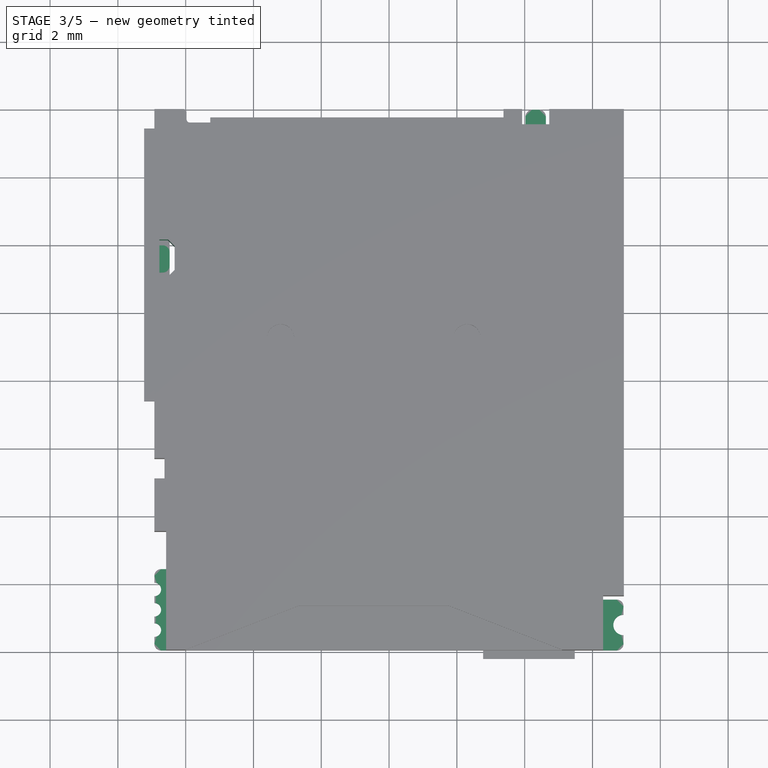
[diagram: stage 3 of 5 — top view after this stage's code; geometry added in this stage tinted green]
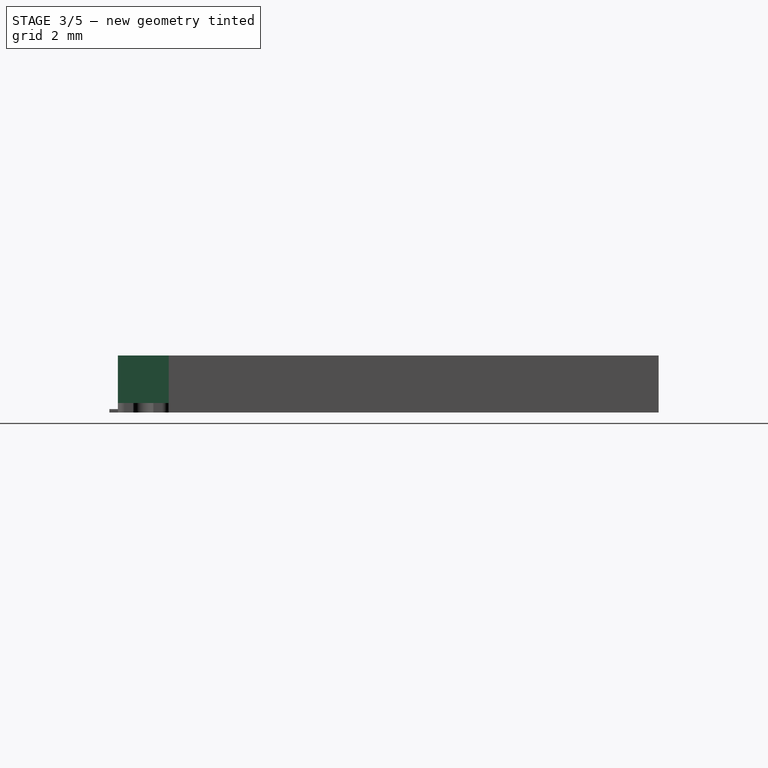
[diagram: stage 3 of 5 — right view after this stage's code; geometry added in this stage tinted green]
FEATURE [Sketcher::SketchObject] Sketch008  label="ShellPins_Flat"
  ExternalGeometry = -> [Pocket004]
  Placement = pos=(0,0,1.68) rot=(0,0,1;0rad)
  Support = -> Pocket004 [Face6]
  sketch-geometry (12):
    g0: LineSegment StartX=-7.075 StartY=-13.55 StartZ=0 EndX=-6.575 EndY=-13.55 EndZ=0
    g1: LineSegment StartX=-6.575 StartY=-13.55 StartZ=0 EndX=-6.575 EndY=-15.95 EndZ=0
    g2: LineSegment StartX=-6.575 StartY=-15.95 StartZ=0 EndX=-7.075 EndY=-15.95 EndZ=0
    g3: LineSegment StartX=-7.075 StartY=-15.95 StartZ=0 EndX=-7.075 EndY=-13.55 EndZ=0
    g4: LineSegment StartX=6.315 StartY=-14.45 StartZ=0 EndX=7.315 EndY=-14.45 EndZ=0
    g5: LineSegment StartX=7.315 StartY=-14.45 StartZ=0 EndX=7.315 EndY=-15.95 EndZ=0
    g6: LineSegment StartX=7.315 StartY=-15.95 StartZ=0 EndX=6.315 EndY=-15.95 EndZ=0
    g7: LineSegment StartX=6.315 StartY=-15.95 StartZ=0 EndX=6.315 EndY=-14.45 EndZ=0
    g8: LineSegment StartX=4.025 StartY=0.55 StartZ=0 EndX=4.625 EndY=0.55 EndZ=0
    g9: LineSegment StartX=4.625 StartY=0.55 StartZ=0 EndX=4.625 EndY=-0.45 EndZ=0
    g10: LineSegment StartX=4.625 StartY=-0.45 StartZ=0 EndX=4.025 EndY=-0.45 EndZ=0
    g11: LineSegment StartX=4.025 StartY=-0.45 StartZ=0 EndX=4.025 EndY=0.55 EndZ=0
  constraints (33):
    c: Coincident(g0,g1)
    c: Coincident(g1,g2)
    c: Coincident(g2,g3)
    c: Coincident(g3,g0)
    c: Horizontal(g0)
    c: Horizontal(g2)
    c: Vertical(g1)
    c: Vertical(g3)
    c: Coincident(g4,g5)
    c: Coincident(g5,g6)
    c: Coincident(g6,g7)
    c: Coincident(g7,g4)
    c: Horizontal(g4)
    c: Horizontal(g6)
    c: Vertical(g5)
    c: Vertical(g7)
    c: Coincident(g8,g9)
    c: Coincident(g9,g10)
    c: Coincident(g10,g11)
    c: Coincident(g11,g8)
    c: Horizontal(g8)
    c: Horizontal(g10)
    c: Vertical(g9)
    c: Vertical(g11)
    c: PointOnObject(g1,g-4)
    c: Coincident(g-3,g0)
    c: DistanceX(g2) = -0.5
    c: Coincident(g4,g-8)
    c: PointOnObject(g6,g-9)
    c: DistanceX(g6) = -1
    c: Coincident(g10,g-10)
    c: Coincident(g9,g-11)
    c: DistanceY(g9) = -1
FEATURE [PartDesign::Pocket] Pocket005  label="ShellPins_Flat_Pocket"
  Length = 1.4
  Sketch = -> Sketch008
  Type = 0
FEATURE [Part::Feature] Fusion_solid  label="Solid_KiCadScale"
  shape: bbox 5.453 x 6.28 x 0.6859 mm, 234 faces (baked)
FEATURE [Sketcher::SketchObject] Sketch016  label="LandPattern_Helper"
  expr: Constraints[188] = -(14.5mm + 1.2mm)
  sketch-geometry (73):
    g0: LineSegment StartX=2.425 StartY=0.5 StartZ=0 EndX=3.125 EndY=0.5 EndZ=0
    g1: LineSegment StartX=3.125 StartY=0.5 StartZ=0 EndX=3.125 EndY=-0.7 EndZ=0
    g2: LineSegment StartX=3.125 StartY=-0.7 StartZ=0 EndX=2.425 EndY=-0.7 EndZ=0
    g3: LineSegment StartX=2.425 StartY=-0.7 StartZ=0 EndX=2.425 EndY=0.5 EndZ=0
    g4: LineSegment [constr] StartX=-5.875 StartY=0.5 StartZ=0 EndX=-4.925 EndY=0.5 EndZ=0
    g5: LineSegment [constr] StartX=-4.925 StartY=0.5 StartZ=0 EndX=-3.825 EndY=0.5 EndZ=0
    g6: LineSegment [constr] StartX=-3.825 StartY=0.5 StartZ=0 EndX=-2.725 EndY=0.5 EndZ=0
    g7: LineSegment [constr] StartX=-2.725 StartY=0.5 StartZ=0 EndX=-1.625 EndY=0.5 EndZ=0
    g8: LineSegment [constr] StartX=-1.625 StartY=0.5 StartZ=0 EndX=-0.525 EndY=0.5 EndZ=0
    g9: LineSegment [constr] StartX=-0.525 StartY=0.5 StartZ=0 EndX=0.575 EndY=0.5 EndZ=0
    g10: LineSegment [constr] StartX=0.575 StartY=0.5 StartZ=0 EndX=1.675 EndY=0.5 EndZ=0
    g11: LineSegment [constr] StartX=1.675 StartY=0.5 StartZ=0 EndX=2.775 EndY=0.5 EndZ=0
    g12: LineSegment StartX=1.325 StartY=0.5 StartZ=0 EndX=2.025 EndY=0.5 EndZ=0
    g13: LineSegment StartX=2.025 StartY=0.5 StartZ=0 EndX=2.025 EndY=-0.7 EndZ=0
    g14: LineSegment StartX=2.025 StartY=-0.7 StartZ=0 EndX=1.325 EndY=-0.7 EndZ=0
    g15: LineSegment StartX=1.325 StartY=-0.7 StartZ=0 EndX=1.325 EndY=0.5 EndZ=0
    g16: LineSegment StartX=0.225 StartY=0.5 StartZ=0 EndX=0.925 EndY=0.5 EndZ=0
    g17: LineSegment StartX=0.925 StartY=0.5 StartZ=0 EndX=0.925 EndY=-0.7 EndZ=0
    g18: LineSegment StartX=0.925 StartY=-0.7 StartZ=0 EndX=0.225 EndY=-0.7 EndZ=0
    g19: LineSegment StartX=0.225 StartY=-0.7 StartZ=0 EndX=0.225 EndY=0.5 EndZ=0
    g20: LineSegment StartX=-0.875 StartY=0.5 StartZ=0 EndX=-0.175 EndY=0.5 EndZ=0
    g21: LineSegment StartX=-0.175 StartY=0.5 StartZ=0 EndX=-0.175 EndY=-0.7 EndZ=0
    g22: LineSegment StartX=-0.175 StartY=-0.7 StartZ=0 EndX=-0.875 EndY=-0.7 EndZ=0
    g23: LineSegment StartX=-0.875 StartY=-0.7 StartZ=0 EndX=-0.875 EndY=0.5 EndZ=0
    g24: LineSegment StartX=-1.975 StartY=0.5 StartZ=0 EndX=-1.275 EndY=0.5 EndZ=0
    g25: LineSegment StartX=-1.275 StartY=0.5 StartZ=0 EndX=-1.275 EndY=-0.7 EndZ=0
    g26: LineSegment StartX=-1.275 StartY=-0.7 StartZ=0 EndX=-1.975 EndY=-0.7 EndZ=0
    g27: LineSegment StartX=-1.975 StartY=-0.7 StartZ=0 EndX=-1.975 EndY=0.5 EndZ=0
    g28: LineSegment StartX=-3.075 StartY=0.5 StartZ=0 EndX=-2.375 EndY=0.5 EndZ=0
    g29: LineSegment StartX=-2.375 StartY=0.5 StartZ=0 EndX=-2.375 EndY=-0.7 EndZ=0
    g30: LineSegment StartX=-2.375 StartY=-0.7 StartZ=0 EndX=-3.075 EndY=-0.7 EndZ=0
    g31: LineSegment StartX=-3.075 StartY=-0.7 StartZ=0 EndX=-3.075 EndY=0.5 EndZ=0
    g32: LineSegment StartX=-4.175 StartY=0.5 StartZ=0 EndX=-3.475 EndY=0.5 EndZ=0
    g33: LineSegment StartX=-3.475 StartY=0.5 StartZ=0 EndX=-3.475 EndY=-0.7 EndZ=0
    g34: LineSegment StartX=-3.475 StartY=-0.7 StartZ=0 EndX=-4.175 EndY=-0.7 EndZ=0
    g35: LineSegment StartX=-4.175 StartY=-0.7 StartZ=0 EndX=-4.175 EndY=0.5 EndZ=0
    g36: LineSegment StartX=-5.275 StartY=0.5 StartZ=0 EndX=-4.575 EndY=0.5 EndZ=0
    g37: LineSegment StartX=-4.575 StartY=0.5 StartZ=0 EndX=-4.575 EndY=-0.7 EndZ=0
    g38: LineSegment StartX=-4.575 StartY=-0.7 StartZ=0 EndX=-5.275 EndY=-0.7 EndZ=0
    g39: LineSegment StartX=-5.275 StartY=-0.7 StartZ=0 EndX=-5.275 EndY=0.5 EndZ=0
    g40: LineSegment StartX=-6.225 StartY=0.5 StartZ=0 EndX=-5.525 EndY=0.5 EndZ=0
    g41: LineSegment StartX=-5.525 StartY=0.5 StartZ=0 EndX=-5.525 EndY=-0.7 EndZ=0
    g42: LineSegment StartX=-5.525 StartY=-0.7 StartZ=0 EndX=-6.225 EndY=-0.7 EndZ=0
    g43: LineSegment StartX=-6.225 StartY=-0.7 StartZ=0 EndX=-6.225 EndY=0.5 EndZ=0
    g44: LineSegment StartX=3.825 StartY=0.5 StartZ=0 EndX=4.825 EndY=0.5 EndZ=0
    g45: LineSegment StartX=4.825 StartY=0.5 StartZ=0 EndX=4.825 EndY=-0.7 EndZ=0
    g46: LineSegment StartX=4.825 StartY=-0.7 StartZ=0 EndX=3.825 EndY=-0.7 EndZ=0
    g47: LineSegment StartX=3.825 StartY=-0.7 StartZ=0 EndX=3.825 EndY=0.5 EndZ=0
    g48: LineSegment [constr] StartX=2.775 StartY=0.5 StartZ=0 EndX=4.325 EndY=0.5 EndZ=0
    g49: LineSegment StartX=-7.225 StartY=-3.8 StartZ=0 EndX=-6.225 EndY=-3.8 EndZ=0
    g50: LineSegment StartX=-6.225 StartY=-3.8 StartZ=0 EndX=-6.225 EndY=-5 EndZ=0
    g51: LineSegment StartX=-6.225 StartY=-5 StartZ=0 EndX=-7.225 EndY=-5 EndZ=0
    g52: LineSegment StartX=-7.225 StartY=-5 StartZ=0 EndX=-7.225 EndY=-3.8 EndZ=0
    g53: LineSegment StartX=-7.225 StartY=-10.2 StartZ=0 EndX=-6.225 EndY=-10.2 EndZ=0
    g54: LineSegment StartX=-6.225 StartY=-10.2 StartZ=0 EndX=-6.225 EndY=-11 EndZ=0
    g55: LineSegment StartX=-6.225 StartY=-11 StartZ=0 EndX=-7.225 EndY=-11 EndZ=0
    g56: LineSegment StartX=-7.225 StartY=-11 StartZ=0 EndX=-7.225 EndY=-10.2 EndZ=0
    g57: LineSegment StartX=-7.225 StartY=-13.35 StartZ=0 EndX=-6.225 EndY=-13.35 EndZ=0
    g58: LineSegment StartX=-6.225 StartY=-13.35 StartZ=0 EndX=-6.225 EndY=-16.15 EndZ=0
    g59: LineSegment StartX=-6.225 StartY=-16.15 StartZ=0 EndX=-7.225 EndY=-16.15 EndZ=0
    g60: LineSegment StartX=-7.225 StartY=-16.15 StartZ=0 EndX=-7.225 EndY=-13.35 EndZ=0
    g61: LineSegment StartX=6.025 StartY=-14.25 StartZ=0 EndX=7.325 EndY=-14.25 EndZ=0
    g62: LineSegment StartX=7.325 StartY=-14.25 StartZ=0 EndX=7.325 EndY=-16.15 EndZ=0
    g63: LineSegment StartX=7.325 StartY=-16.15 StartZ=0 EndX=6.025 EndY=-16.15 EndZ=0
    g64: LineSegment StartX=6.025 StartY=-16.15 StartZ=0 EndX=6.025 EndY=-14.25 EndZ=0
    g65: LineSegment [constr] StartX=-7.225 StartY=-4.4 StartZ=0 EndX=-7.225 EndY=-10.6 EndZ=0
    g66: LineSegment [constr] StartX=-7.225 StartY=-10.6 StartZ=0 EndX=-7.225 EndY=-14.75 EndZ=0
    g67: LineSegment [constr] StartX=-7.225 StartY=-0.7 StartZ=0 EndX=-7.225 EndY=-4.4 EndZ=0
    g68: LineSegment [constr] StartX=2.775 StartY=0.5 StartZ=0 EndX=2.775 EndY=-15.2 EndZ=0
    g69: LineSegment [constr] StartX=2.775 StartY=-15.2 StartZ=0 EndX=6.675 EndY=-15.2 EndZ=0
    g70: LineSegment [constr] StartX=-7.225 StartY=0.5 StartZ=0 EndX=-7.225 EndY=-0.7 EndZ=0
    g71: GeomPoint [constr] X=-6.725 Y=-14.75 Z=0
    g72: GeomPoint [constr] X=-5.875 Y=-0.1 Z=0
  constraints (221):
    c: Coincident(g0,g1)
    c: Coincident(g1,g2)
    c: Coincident(g2,g3)
    c: Coincident(g3,g0)
    c: Horizontal(g0)
    c: Horizontal(g2)
    c: Vertical(g1)
    c: Vertical(g3)
    c: DistanceX(g0) = 0.7
    c: Horizontal(g4)
    c: Coincident(g4,g5)
    c: Horizontal(g5)
    c: Coincident(g5,g6)
    c: Horizontal(g6)
    c: Coincident(g6,g7)
    c: Horizontal(g7)
    c: Coincident(g7,g8)
    c: Horizontal(g8)
    c: Coincident(g8,g9)
    c: Horizontal(g9)
    c: Coincident(g9,g10)
    c: Horizontal(g10)
    c: Coincident(g10,g11)
    c: Horizontal(g11)
    c: Symmetric(g0,g0,g11)
    c: Equal(g11,g10)
    c: Equal(g10,g9)
    c: Equal(g9,g8)
    c: Equal(g8,g7)
    c: Equal(g7,g6)
    c: Equal(g6,g5)
    c: DistanceX(g11) = 1.1
    c: DistanceY(g1) = -1.2
    c: Coincident(g12,g13)
    c: Coincident(g13,g14)
    c: Coincident(g14,g15)
    c: Coincident(g15,g12)
    c: Horizontal(g12)
    c: Horizontal(g14)
    c: Vertical(g13)
    c: Vertical(g15)
    c: Coincident(g16,g17)
    c: Coincident(g17,g18)
    c: Coincident(g18,g19)
    c: Coincident(g19,g16)
    c: Horizontal(g16)
    c: Horizontal(g18)
    c: Vertical(g17)
    c: Vertical(g19)
    c: Coincident(g20,g21)
    c: Coincident(g21,g22)
    c: Coincident(g22,g23)
    c: Coincident(g23,g20)
    c: Horizontal(g20)
    c: Horizontal(g22)
    c: Vertical(g21)
    c: Vertical(g23)
    c: Coincident(g24,g25)
    c: Coincident(g25,g26)
    c: Coincident(g26,g27)
    c: Coincident(g27,g24)
    c: Horizontal(g24)
    c: Horizontal(g26)
    c: Vertical(g25)
    c: Vertical(g27)
    c: Coincident(g28,g29)
    c: Coincident(g29,g30)
    c: Coincident(g30,g31)
    c: Coincident(g31,g28)
    c: Horizontal(g28)
    c: Horizontal(g30)
    c: Vertical(g29)
    c: Vertical(g31)
    c: Coincident(g32,g33)
    c: Coincident(g33,g34)
    c: Coincident(g34,g35)
    c: Coincident(g35,g32)
    c: Horizontal(g32)
    c: Horizontal(g34)
    c: Vertical(g33)
    c: Vertical(g35)
    c: Coincident(g36,g37)
    c: Coincident(g37,g38)
    c: Coincident(g38,g39)
    c: Coincident(g39,g36)
    c: Horizontal(g36)
    c: Horizontal(g38)
    c: Vertical(g37)
    c: Vertical(g39)
    c: Coincident(g40,g41)
    c: Coincident(g41,g42)
    c: Coincident(g42,g43)
    c: Coincident(g43,g40)
    c: Horizontal(g40)
    c: Horizontal(g42)
    c: Vertical(g41)
    c: Vertical(g43)
    c: Equal(g12,g16)
    c: Equal(g16,g20)
    c: Equal(g20,g24)
    c: Equal(g24,g28)
    c: Equal(g28,g32)
    c: Equal(g32,g36)
    c: Equal(g36,g40)
    c: Equal(g40,g0)
    c: Equal(g1,g13)
    c: Equal(g13,g17)
    c: Equal(g17,g21)
    c: Equal(g21,g25)
    c: Equal(g25,g29)
    c: Equal(g29,g33)
    c: Equal(g33,g37)
    c: Equal(g37,g41)
    c: Symmetric(g12,g12,g10)
    c: Symmetric(g16,g16,g9)
    c: Symmetric(g20,g20,g8)
    c: Symmetric(g24,g24,g7)
    c: Symmetric(g28,g28,g6)
    c: Symmetric(g32,g32,g5)
    c: Symmetric(g36,g36,g4)
    c: Symmetric(g40,g40,g4)
    c: DistanceX(g4,g11) = 8.65
    c: DistanceX(g11,g4) = -7.7
    c: DistanceX(g-1,g11) = 2.775
    c: Coincident(g44,g45)
    c: Coincident(g45,g46)
    c: Coincident(g46,g47)
    c: Coincident(g47,g44)
    c: Horizontal(g44)
    c: Horizontal(g46)
    c: Vertical(g45)
    c: Vertical(g47)
    c: DistanceX(g44) = 1
    c: Equal(g45,g1)
    c: Horizontal(g48)
    c: Symmetric(g44,g44,g48)
    c: Coincident(g11,g48)
    c: DistanceX(g48) = 1.55
    c: Coincident(g49,g50)
    c: Coincident(g50,g51)
    c: Coincident(g51,g52)
    c: Coincident(g52,g49)
    c: Horizontal(g49)
    c: Horizontal(g51)
    c: Vertical(g50)
    c: Vertical(g52)
    c: DistanceY(g52) = 1.2
    c: DistanceX(g51) = -1
    c: Coincident(g53,g54)
    c: Coincident(g54,g55)
    c: Coincident(g55,g56)
    c: Coincident(g56,g53)
    c: Horizontal(g53)
    c: Horizontal(g55)
    c: Vertical(g54)
    c: Vertical(g56)
    c: Coincident(g57,g58)
    c: Coincident(g58,g59)
    c: Coincident(g59,g60)
    c: Coincident(g60,g57)
    c: Horizontal(g57)
    c: Horizontal(g59)
    c: Vertical(g58)
    c: Vertical(g60)
    c: Coincident(g61,g62)
    c: Coincident(g62,g63)
    c: Coincident(g63,g64)
    c: Coincident(g64,g61)
    c: Horizontal(g61)
    c: Horizontal(g63)
    c: Vertical(g62)
    c: Vertical(g64)
    c: DistanceX(g63) = -1.3
    c: DistanceY(g62) = -1.9
    c: DistanceY(g60) = 2.8
    c: DistanceX(g59) = -1
    c: DistanceX(g55) = -1
    c: DistanceY(g56) = 0.8
    c: Vertical(g65)
    c: Vertical(g66)
    c: Coincident(g65,g66)
    c: Symmetric(g60,g60,g66)
    c: Symmetric(g56,g56,g65)
    c: Vertical(g67)
    c: Coincident(g67,g65)
    c: Symmetric(g52,g52,g65)
    c: Vertical(g68)
    c: Coincident(g68,g11)
    c: DistanceY(g68) = -15.7
    c: DistanceY(g-1,g11) = 0.5
    c: Horizontal(g69)
    c: Coincident(g69,g68)
    c: Symmetric(g63,g61,g69)
    c: Vertical(g70)
    c: Coincident(g67,g70)
    c: Equal(g70,g1)
    c: PointOnObject(g70,g4)
    c: DistanceX(g11,g70) = -10
    c: DistanceY(g65,g67) = 3.7
    c: DistanceY(g67,g65) = -9.9
    c: DistanceY(g66,g67) = 14.05
    c: DistanceX(g68,g63) = 3.25
    c: DistanceX(g69) = 6.675
    c: DistanceY(g69) = -15.2
    c: Symmetric(g59,g57,g71)
    c: DistanceX(g71) = -6.725
    c: DistanceY(g71) = -14.75
    c: DistanceY(g65) = -10.6
    c: DistanceY(g65) = -4.4
    c: Symmetric(g42,g40,g72)
    c: DistanceY(g-1,g72) = -0.1
    c: DistanceX(g-1,g4) = -5.875
    c: DistanceX(g-1,g4) = -4.925
    c: DistanceX(g-1,g5) = -3.825
    c: DistanceX(g-1,g6) = -2.725
    c: DistanceX(g-1,g7) = -1.625
    c: DistanceX(g8) = -0.525
    c: DistanceX(g-1,g9) = 0.575
    c: DistanceX(g-1,g10) = 1.675
    c: DistanceX(g-1,g11) = 2.775
    c: DistanceX(g-1,g48) = 4.325
FEATURE [Sketcher::SketchObject] Sketch017  label="PinShell"
  Placement = pos=(0,0,1.68) rot=(0,0,1;0rad)
  Support = -> Pocket005 [Face6]
  sketch-geometry (13):
    g0: LineSegment [constr] StartX=-6.775 StartY=-3.85 StartZ=0 EndX=-6.775 EndY=-4.95 EndZ=0
    g1: LineSegment StartX=-6.775 StartY=-4.95 StartZ=0 EndX=-6.525 EndY=-4.95 EndZ=0
    g2: LineSegment StartX=-6.525 StartY=-4.95 StartZ=0 EndX=-6.325 EndY=-4.75 EndZ=0
    g3: LineSegment StartX=-6.325 StartY=-4.75 StartZ=0 EndX=-6.325 EndY=-4.05 EndZ=0
    g4: LineSegment StartX=-6.325 StartY=-4.05 StartZ=0 EndX=-6.525 EndY=-3.85 EndZ=0
    g5: LineSegment StartX=-6.525 StartY=-3.85 StartZ=0 EndX=-6.775 EndY=-3.85 EndZ=0
    g6: LineSegment StartX=-6.775 StartY=-3.85 StartZ=0 EndX=-6.775 EndY=-4 EndZ=0
    g7: LineSegment StartX=-6.775 StartY=-4.8 StartZ=0 EndX=-6.775 EndY=-4.95 EndZ=0
    g8: LineSegment StartX=-6.775 StartY=-4.8 StartZ=0 EndX=-6.675 EndY=-4.8 EndZ=0
    g9: LineSegment StartX=-6.775 StartY=-4 StartZ=0 EndX=-6.675 EndY=-4 EndZ=0
    g10: LineSegment StartX=-6.475 StartY=-4.2 StartZ=0 EndX=-6.475 EndY=-4.6 EndZ=0
    g11: ArcOfCircle CenterX=-6.675 CenterY=-4.2 CenterZ=0 NormalX=0 NormalY=0 NormalZ=1 Radius=0.2 StartAngle=1.73451e-07 EndAngle=1.57079
    g12: ArcOfCircle CenterX=-6.675 CenterY=-4.6 CenterZ=0 NormalX=0 NormalY=0 NormalZ=1 Radius=0.2 StartAngle=4.71239 EndAngle=6.28318
  constraints (40):
    c: Vertical(g0)
    c: Coincident(g0,g1)
    c: Horizontal(g1)
    c: Coincident(g1,g2)
    c: Coincident(g2,g3)
    c: Vertical(g3)
    c: Coincident(g3,g4)
    c: Coincident(g4,g5)
    c: Horizontal(g5)
    c: Coincident(g0,g5)
    c: Equal(g4,g2)
    c: DistanceY(g0) = -1.1
    c: DistanceX(g5) = -0.25
    c: DistanceY(g3) = 0.7
    c: DistanceX(g3,g4) = -0.2
    c: Equal(g5,g1)
    c: Vertical(g6)
    c: Horizontal(g8)
    c: Horizontal(g9)
    c: Vertical(g10)
    c: Coincident(g9,g6)
    c: Coincident(g7,g8)
    c: Vertical(g7)
    c: Equal(g7,g6)
    c: Coincident(g6,g0)
    c: Coincident(g7,g0)
    c: DistanceY(g6,g7) = -0.8
    c: Coincident(g12,g10)
    c: Coincident(g11,g10)
    c: Radius(g11) = 0.2
    c: Equal(g12,g11)
    c: Coincident(g8,g12)
    c: Coincident(g11,g9)
    c: Tangent(g11,g9)
    c: Tangent(g8,g12)
    c: DistanceX(g10,g6) = -0.3
    c: Tangent(g11,g10)
    c: Tangent(g10,g12)
    c: DistanceX(g0) = -6.775
    c: DistanceY(g0) = -3.85
FEATURE [PartDesign::Pocket] Pocket006  label="PinShell_Pocket"
  Length = 5
  Sketch = -> Sketch017
  Type = 1
FEATURE [Sketcher::SketchObject] Sketch018  label="PinShellFlat"
  ExternalGeometry = -> [Pocket006]
  Placement = pos=(0,0,1.68) rot=(0,0,1;0rad)
  Support = -> Pocket006 [Face6]
  sketch-geometry (4):
    g0: LineSegment StartX=-6.775 StartY=-4 StartZ=0 EndX=-6.455 EndY=-4 EndZ=0
    g1: LineSegment StartX=-6.455 StartY=-4 StartZ=0 EndX=-6.455 EndY=-4.8 EndZ=0
    g2: LineSegment StartX=-6.455 StartY=-4.8 StartZ=0 EndX=-6.775 EndY=-4.8 EndZ=0
    g3: LineSegment StartX=-6.775 StartY=-4.8 StartZ=0 EndX=-6.775 EndY=-4 EndZ=0
  constraints (11):
    c: Coincident(g0,g1)
    c: Coincident(g1,g2)
    c: Coincident(g2,g3)
    c: Coincident(g3,g0)
    c: Horizontal(g0)
    c: Horizontal(g2)
    c: Vertical(g1)
    c: Vertical(g3)
    c: Coincident(g2,g-4)
    c: Coincident(g0,g-3)
    c: DistanceX(g0) = 0.32
FEATURE [PartDesign::Pocket] Pocket007  label="PinShellFlat_Pocket"
  Length = 1.4
  Sketch = -> Sketch018
  Type = 0
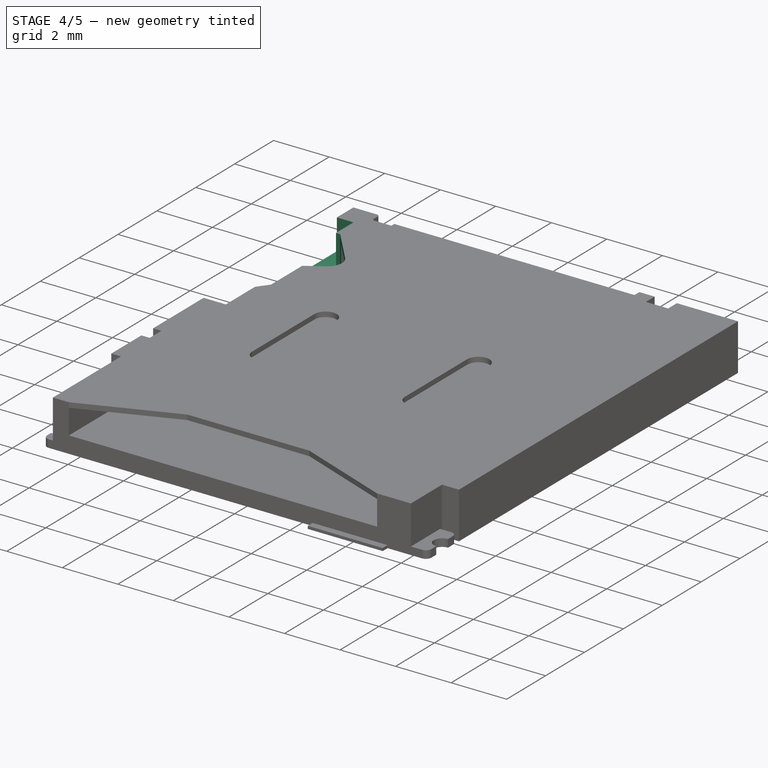
[diagram: stage 4 of 5 — iso view after this stage's code; geometry added in this stage tinted green]
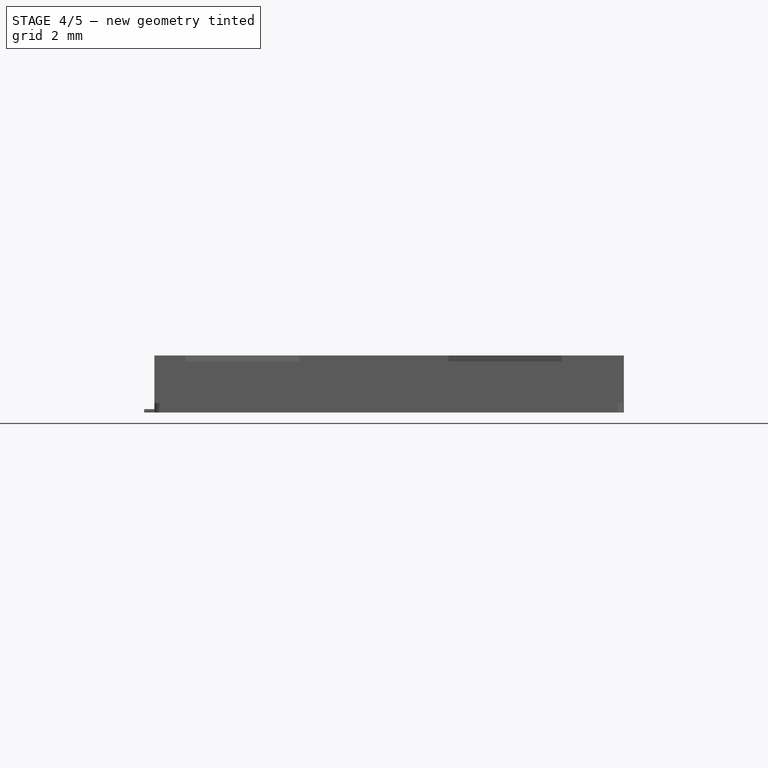
[diagram: stage 4 of 5 — front view after this stage's code; geometry added in this stage tinted green]
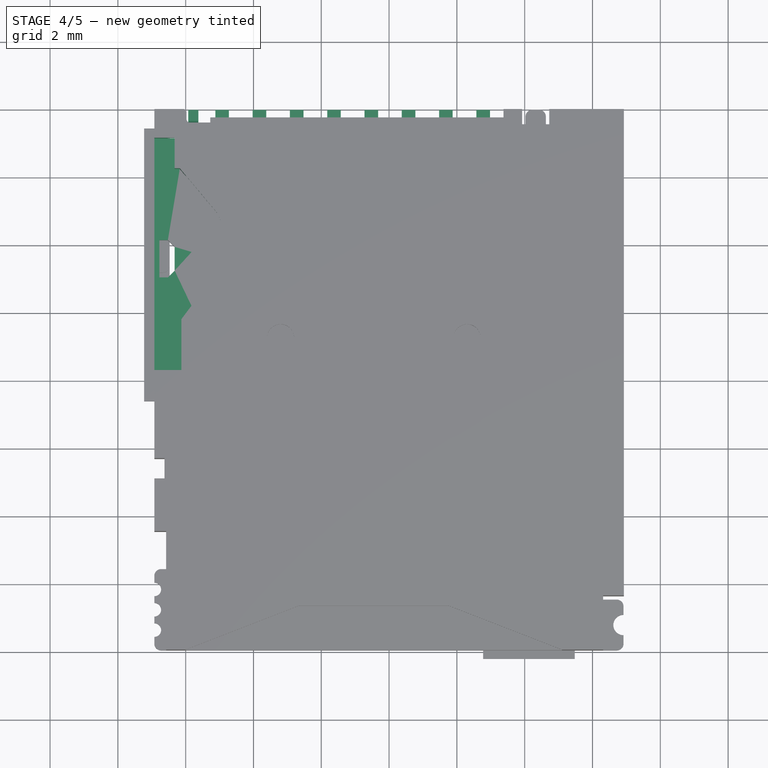
[diagram: stage 4 of 5 — top view after this stage's code; geometry added in this stage tinted green]
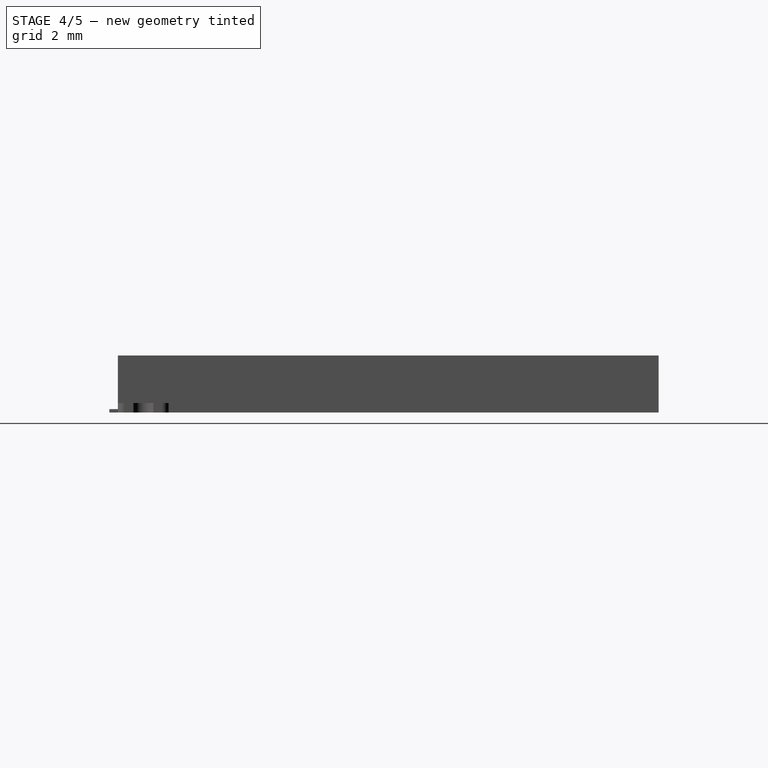
[diagram: stage 4 of 5 — right view after this stage's code; geometry added in this stage tinted green]
FEATURE [Sketcher::SketchObject] Sketch010  label="Pins"
  Placement = pos=(0,0,0) rot=(-1,0,0;1.5708rad)
  sketch-geometry (44):
    g0: LineSegment StartX=-4.025 StartY=0 StartZ=0 EndX=-3.625 EndY=0 EndZ=0
    g1: LineSegment StartX=-3.625 StartY=0 StartZ=0 EndX=-3.625 EndY=-0.3 EndZ=0
    g2: LineSegment StartX=-3.625 StartY=-0.3 StartZ=0 EndX=-4.025 EndY=-0.3 EndZ=0
    g3: LineSegment StartX=-4.025 StartY=-0.3 StartZ=0 EndX=-4.025 EndY=0 EndZ=0
    g4: LineSegment StartX=2.575 StartY=0 StartZ=0 EndX=2.975 EndY=0 EndZ=0
    g5: LineSegment StartX=2.975 StartY=0 StartZ=0 EndX=2.975 EndY=-0.3 EndZ=0
    g6: LineSegment StartX=2.975 StartY=-0.3 StartZ=0 EndX=2.575 EndY=-0.3 EndZ=0
    g7: LineSegment StartX=2.575 StartY=-0.3 StartZ=0 EndX=2.575 EndY=0 EndZ=0
    g8: LineSegment [constr] StartX=-4.925 StartY=0 StartZ=0 EndX=-3.825 EndY=0 EndZ=0
    g9: LineSegment [constr] StartX=-3.825 StartY=0 StartZ=0 EndX=-2.725 EndY=0 EndZ=0
    g10: LineSegment [constr] StartX=-2.725 StartY=0 StartZ=0 EndX=-1.625 EndY=0 EndZ=0
    g11: LineSegment [constr] StartX=-1.625 StartY=0 StartZ=0 EndX=-0.525 EndY=0 EndZ=0
    g12: LineSegment [constr] StartX=-0.525 StartY=0 StartZ=0 EndX=0.575 EndY=0 EndZ=0
    g13: LineSegment [constr] StartX=0.575 StartY=0 StartZ=0 EndX=1.675 EndY=0 EndZ=0
    g14: LineSegment [constr] StartX=1.675 StartY=0 StartZ=0 EndX=2.775 EndY=0 EndZ=0
    g15: LineSegment [constr] StartX=-4.925 StartY=0 StartZ=0 EndX=-5.775 EndY=0 EndZ=0
    g16: LineSegment StartX=-2.925 StartY=0 StartZ=0 EndX=-2.525 EndY=0 EndZ=0
    g17: LineSegment StartX=-2.525 StartY=0 StartZ=0 EndX=-2.525 EndY=-0.3 EndZ=0
    g18: LineSegment StartX=-2.525 StartY=-0.3 StartZ=0 EndX=-2.925 EndY=-0.3 EndZ=0
    g19: LineSegment StartX=-2.925 StartY=-0.3 StartZ=0 EndX=-2.925 EndY=0 EndZ=0
    g20: LineSegment StartX=-1.825 StartY=0 StartZ=0 EndX=-1.425 EndY=0 EndZ=0
    g21: LineSegment StartX=-1.425 StartY=0 StartZ=0 EndX=-1.425 EndY=-0.3 EndZ=0
    g22: LineSegment StartX=-1.425 StartY=-0.3 StartZ=0 EndX=-1.825 EndY=-0.3 EndZ=0
    g23: LineSegment StartX=-1.825 StartY=-0.3 StartZ=0 EndX=-1.825 EndY=0 EndZ=0
    g24: LineSegment StartX=-0.725 StartY=0 StartZ=0 EndX=-0.325 EndY=0 EndZ=0
    g25: LineSegment StartX=-0.325 StartY=0 StartZ=0 EndX=-0.325 EndY=-0.3 EndZ=0
    g26: LineSegment StartX=-0.325 StartY=-0.3 StartZ=0 EndX=-0.725 EndY=-0.3 EndZ=0
    g27: LineSegment StartX=-0.725 StartY=-0.3 StartZ=0 EndX=-0.725 EndY=0 EndZ=0
    g28: LineSegment StartX=0.375 StartY=0 StartZ=0 EndX=0.775 EndY=0 EndZ=0
    g29: LineSegment StartX=0.775 StartY=0 StartZ=0 EndX=0.775 EndY=-0.3 EndZ=0
    g30: LineSegment StartX=0.775 StartY=-0.3 StartZ=0 EndX=0.375 EndY=-0.3 EndZ=0
    g31: LineSegment StartX=0.375 StartY=-0.3 StartZ=0 EndX=0.375 EndY=0 EndZ=0
    g32: LineSegment StartX=1.475 StartY=0 StartZ=0 EndX=1.875 EndY=0 EndZ=0
    g33: LineSegment StartX=1.875 StartY=0 StartZ=0 EndX=1.875 EndY=-0.3 EndZ=0
    g34: LineSegment StartX=1.875 StartY=-0.3 StartZ=0 EndX=1.475 EndY=-0.3 EndZ=0
    g35: LineSegment StartX=1.475 StartY=-0.3 StartZ=0 EndX=1.475 EndY=0 EndZ=0
    g36: LineSegment StartX=-5.125 StartY=0 StartZ=0 EndX=-4.725 EndY=0 EndZ=0
    g37: LineSegment StartX=-4.725 StartY=0 StartZ=0 EndX=-4.725 EndY=-0.3 EndZ=0
    g38: LineSegment StartX=-4.725 StartY=-0.3 StartZ=0 EndX=-5.125 EndY=-0.3 EndZ=0
    g39: LineSegment StartX=-5.125 StartY=-0.3 StartZ=0 EndX=-5.125 EndY=0 EndZ=0
    g40: LineSegment StartX=-5.925 StartY=0 StartZ=0 EndX=-5.625 EndY=0 EndZ=0
    g41: LineSegment StartX=-5.625 StartY=0 StartZ=0 EndX=-5.625 EndY=-0.3 EndZ=0
    g42: LineSegment StartX=-5.625 StartY=-0.3 StartZ=0 EndX=-5.925 EndY=-0.3 EndZ=0
    g43: LineSegment StartX=-5.925 StartY=-0.3 StartZ=0 EndX=-5.925 EndY=0 EndZ=0
  constraints (125):
    c: Coincident(g0,g1)
    c: Coincident(g1,g2)
    c: Coincident(g2,g3)
    c: Coincident(g3,g0)
    c: Horizontal(g0)
    c: Horizontal(g2)
    c: Vertical(g1)
    c: Vertical(g3)
    c: Coincident(g4,g5)
    c: Coincident(g5,g6)
    c: Coincident(g6,g7)
    c: Coincident(g7,g4)
    c: Horizontal(g4)
    c: Horizontal(g6)
    c: Vertical(g5)
    c: Vertical(g7)
    c: Horizontal(g8)
    c: Coincident(g8,g9)
    c: Horizontal(g9)
    c: Coincident(g9,g10)
    c: Horizontal(g10)
    c: Coincident(g10,g11)
    c: Horizontal(g11)
    c: Coincident(g11,g12)
    c: Horizontal(g12)
    c: Coincident(g12,g13)
    c: Horizontal(g13)
    c: Coincident(g13,g14)
    c: Horizontal(g14)
    c: Equal(g8,g9)
    c: Equal(g9,g10)
    c: Equal(g10,g11)
    c: Equal(g11,g12)
    c: Equal(g12,g13)
    c: Equal(g13,g14)
    c: DistanceX(g8) = 1.1
    c: Coincident(g15,g8)
    c: Horizontal(g15)
    c: DistanceY(g5) = -0.3
    c: DistanceX(g4) = 0.4
    c: Coincident(g16,g17)
    c: Coincident(g17,g18)
    c: Coincident(g18,g19)
    c: Coincident(g19,g16)
    c: Horizontal(g16)
    c: Horizontal(g18)
    c: Vertical(g17)
    c: Vertical(g19)
    c: Coincident(g20,g21)
    c: Coincident(g21,g22)
    c: Coincident(g22,g23)
    c: Coincident(g23,g20)
    c: Horizontal(g20)
    c: Horizontal(g22)
    c: Vertical(g21)
    c: Vertical(g23)
    c: Coincident(g24,g25)
    c: Coincident(g25,g26)
    c: Coincident(g26,g27)
    c: Coincident(g27,g24)
    c: Horizontal(g24)
    c: Horizontal(g26)
    c: Vertical(g25)
    c: Vertical(g27)
    c: Coincident(g28,g29)
    c: Coincident(g29,g30)
    c: Coincident(g30,g31)
    c: Coincident(g31,g28)
    c: Horizontal(g28)
    c: Horizontal(g30)
    c: Vertical(g29)
    c: Vertical(g31)
    c: Coincident(g32,g33)
    c: Coincident(g33,g34)
    c: Coincident(g34,g35)
    c: Coincident(g35,g32)
    c: Horizontal(g32)
    c: Horizontal(g34)
    c: Vertical(g33)
    c: Vertical(g35)
    c: Coincident(g36,g37)
    c: Coincident(g37,g38)
    c: Coincident(g38,g39)
    c: Coincident(g39,g36)
    c: Horizontal(g36)
    c: Horizontal(g38)
    c: Vertical(g37)
    c: Vertical(g39)
    c: Equal(g36,g0)
    c: Equal(g0,g16)
    c: Equal(g16,g20)
    c: Equal(g20,g24)
    c: Equal(g24,g28)
    c: Equal(g28,g32)
    c: Equal(g32,g4)
    c: Equal(g37,g1)
    c: Equal(g1,g17)
    c: Equal(g17,g21)
    c: Equal(g21,g25)
    c: Equal(g25,g29)
    c: Equal(g29,g33)
    c: Equal(g33,g5)
    c: Symmetric(g36,g36,g8)
    c: Symmetric(g0,g0,g8)
    c: Symmetric(g16,g16,g9)
    c: Symmetric(g20,g20,g10)
    c: Symmetric(g24,g24,g11)
    c: Symmetric(g28,g28,g12)
    c: Symmetric(g32,g32,g13)
    c: Symmetric(g4,g4,g14)
    c: PointOnObject(g-1,g12)
    c: DistanceX(g-1,g37) = -4.725
    c: Coincident(g40,g41)
    c: Coincident(g41,g42)
    c: Coincident(g42,g43)
    c: Coincident(g43,g40)
    c: Horizontal(g40)
    c: Horizontal(g42)
    c: Vertical(g41)
    c: Vertical(g43)
    c: DistanceX(g40) = 0.3
    c: Equal(g41,g5)
    c: Symmetric(g40,g40,g15)
    c: DistanceX(g15,g8) = 0.85
    c: DistanceX(g40,g36) = 0.9
FEATURE [Sketcher::SketchObject] Sketch012  label="ExtrudePath"
  Placement = pos=(0,0,0) rot=(0.57735,0.57735,0.57735;2.0944rad)
  sketch-geometry (4):
    g0: LineSegment StartX=-0.85 StartY=0.4 StartZ=0 EndX=-0.7 EndY=0.4 EndZ=0
    g1: LineSegment StartX=-0.3 StartY=0 StartZ=0 EndX=0 EndY=0 EndZ=0
    g2: ArcOfCircle CenterX=-0.7 CenterY=0.3 CenterZ=0 NormalX=0 NormalY=0 NormalZ=1 Radius=0.1 StartAngle=8.5493e-08 EndAngle=1.5708
    g3: ArcOfCircle CenterX=-0.3 CenterY=0.3 CenterZ=0 NormalX=0 NormalY=0 NormalZ=1 Radius=0.3 StartAngle=3.14159 EndAngle=4.71239
  constraints (14):
    c: Horizontal(g0)
    c: Horizontal(g1)
    c: DistanceX(g0) = 0.15
    c: DistanceX(g1) = 0.3
    c: Coincident(g3,g1)
    c: Coincident(g2,g3)
    c: Coincident(g0,g2)
    c: Radius(g2) = 0.1
    c: Radius(g3) = 0.3
    c: DistanceX(g0,g1) = 0.85
    c: Coincident(g1,g-1)
    c: Tangent(g0,g2)
    c: Angle(g3) = 1.5708
    c: Angle(g2) = 1.5708
FEATURE [Sketcher::SketchObject] Sketch013  label="Pin1"
  Placement = pos=(0,0,0) rot=(1,0,0;1.5708rad)
  sketch-geometry (4):
    g0: LineSegment StartX=2.975 StartY=0.2 StartZ=0 EndX=2.575 EndY=0.2 EndZ=0
    g1: LineSegment StartX=2.575 StartY=0.2 StartZ=0 EndX=2.575 EndY=0 EndZ=0
    g2: LineSegment StartX=2.575 StartY=0 StartZ=0 EndX=2.975 EndY=0 EndZ=0
    g3: LineSegment StartX=2.975 StartY=0 StartZ=0 EndX=2.975 EndY=0.2 EndZ=0
  constraints (12):
    c: Coincident(g0,g1)
    c: Coincident(g1,g2)
    c: Coincident(g2,g3)
    c: Coincident(g3,g0)
    c: Horizontal(g0)
    c: Horizontal(g2)
    c: Vertical(g1)
    c: Vertical(g3)
    c: DistanceX(g0) = -0.4
    c: DistanceY(g3) = 0.2
    c: DistanceX(g1) = 2.575
    c: PointOnObject(g1,g-1)
FEATURE [Sketcher::SketchObject] Sketch015  label="Pin9"
  Placement = pos=(0,0,0) rot=(1,0,0;1.5708rad)
  sketch-geometry (4):
    g0: LineSegment StartX=-5.925 StartY=0.2 StartZ=0 EndX=-5.625 EndY=0.2 EndZ=0
    g1: LineSegment StartX=-5.625 StartY=0.2 StartZ=0 EndX=-5.625 EndY=0 EndZ=0
    g2: LineSegment StartX=-5.625 StartY=0 StartZ=0 EndX=-5.925 EndY=0 EndZ=0
    g3: LineSegment StartX=-5.925 StartY=0 StartZ=0 EndX=-5.925 EndY=0.2 EndZ=0
  constraints (12):
    c: Coincident(g0,g1)
    c: Coincident(g1,g2)
    c: Coincident(g2,g3)
    c: Coincident(g3,g0)
    c: Horizontal(g0)
    c: Horizontal(g2)
    c: Vertical(g1)
    c: Vertical(g3)
    c: DistanceX(g0) = 0.3
    c: DistanceY(g1) = -0.2
    c: PointOnObject(g2,g-1)
    c: DistanceX(g-1,g2) = -5.925
FEATURE [Part::Sweep] Sweep  label="Pin1_Sweep"
  Frenet = false
  Sections = -> [Sketch013]
  Solid = true
  Spine = -> Sketch012 [Edge4,Edge3,Edge2,Edge1]
  Transition = 1
FEATURE [Part::FeaturePython] Array  label="Pins_Array"  # Draft array (typed FeaturePython)
  Angle = 360
  ArrayType = 0
  Axis = (0,0,1)
  Base = -> Sweep
  Center = (0,0,0)
  Fuse = false
  IntervalAxis = (0,0,0)
  IntervalX = (-1.1,0,0)
  IntervalY = (0,1,0)
  IntervalZ = (0,0,0)
  NumberPolar = 1
  NumberX = 8
  NumberY = 1
  NumberZ = 1
FEATURE [Part::Sweep] Sweep001  label="Pin9_Sweep"
  Frenet = false
  Sections = -> [Sketch015]
  Solid = true
  Spine = -> Sketch012 [Edge4,Edge3,Edge2,Edge1]
  Transition = 1
FEATURE [Sketcher::SketchObject] Sketch019  label="CardDetectSwitch"
  Placement = pos=(0,0,1.68) rot=(0,0,1;0rad)
  Support = -> Pocket007 [Face6]
  sketch-geometry (14):
    g0: LineSegment StartX=-6.925 StartY=-0.85 StartZ=0 EndX=-6.325 EndY=-0.85 EndZ=0
    g1: LineSegment StartX=-6.325 StartY=-0.85 StartZ=0 EndX=-6.325 EndY=-1.75 EndZ=0
    g2: LineSegment StartX=-6.325 StartY=-1.75 StartZ=0 EndX=-6.175 EndY=-1.75 EndZ=0
    g3: LineSegment StartX=-6.175 StartY=-1.75 StartZ=0 EndX=-5.09892 EndY=-3.03243 EndZ=0
    g4: LineSegment StartX=-6.925 StartY=-7.7 StartZ=0 EndX=-6.125 EndY=-7.7 EndZ=0
    g5: LineSegment StartX=-6.125 StartY=-7.7 StartZ=0 EndX=-6.125 EndY=-6.2 EndZ=0
    g6: LineSegment StartX=-6.125 StartY=-6.2 StartZ=0 EndX=-5.825 EndY=-5.8 EndZ=0
    g7: LineSegment StartX=-5.825 StartY=-5.8 StartZ=0 EndX=-5.825 EndY=-4.2 EndZ=0
    g8: LineSegment StartX=-6.925 StartY=-0.85 StartZ=0 EndX=-7.925 EndY=-0.85 EndZ=0
    g9: LineSegment StartX=-7.925 StartY=-0.85 StartZ=0 EndX=-7.925 EndY=-7.7 EndZ=0
    g10: LineSegment StartX=-7.925 StartY=-7.7 StartZ=0 EndX=-6.925 EndY=-7.7 EndZ=0
    g11: LineSegment StartX=-5.825 StartY=-4.2 StartZ=0 EndX=-5.225 EndY=-3.82591 EndZ=0
    g12: ArcOfCircle CenterX=-5.50649 CenterY=-3.37442 CenterZ=0 NormalX=0 NormalY=0 NormalZ=1 Radius=0.532054 StartAngle=5.26989 EndAngle=6.98132
    g13: GeomPoint [constr] X=-4.975 Y=-3.35 Z=0
  constraints (42):
    c: Horizontal(g0)
    c: Coincident(g0,g1)
    c: Vertical(g1)
    c: Coincident(g1,g2)
    c: Coincident(g2,g3)
    c: DistanceY(g-1,g0) = -0.85
    c: DistanceX(g0) = 0.6
    c: DistanceX(g2) = 0.15
    c: Horizontal(g2)
    c: DistanceX(g-1,g0) = -6.925
    c: Horizontal(g4)
    c: Coincident(g4,g5)
    c: Vertical(g5)
    c: Coincident(g5,g6)
    c: Coincident(g6,g7)
    c: Vertical(g7)
    c: DistanceX(g4) = 0.8
    c: DistanceY(g5) = 1.5
    c: DistanceY(g5,g6) = 0.4
    c: DistanceX(g6,g4) = -1.1
    c: DistanceY(g7) = 1.6
    c: Horizontal(g8)
    c: Coincident(g8,g9)
    c: Vertical(g9)
    c: Coincident(g9,g10)
    c: Horizontal(g10)
    c: Coincident(g10,g4)
    c: Coincident(g8,g0)
    c: Equal(g8,g10)
    c: DistanceX(g8) = -1
    c: DistanceY(g7,g2) = 2.45
    c: DistanceY(g1) = -0.9
    c: Coincident(g11,g7)
    c: Coincident(g12,g11)
    c: PointOnObject(g13,g12)
    c: Coincident(g3,g12)
    c: DistanceX(g13,g2) = -1.2
    c: Tangent(g12,g3)
    c: Angle(g2,g3) = 2.26893
    c: DistanceX(g7,g11) = 0.6
    c: Tangent(g12,g11)
    c: DistanceY(g13,g7) = -0.85
FEATURE [PartDesign::Pocket] Pocket008  label="CardDetectSwitch_Pocket"
  Length = 1.1
  Sketch = -> Sketch019
  Type = 0
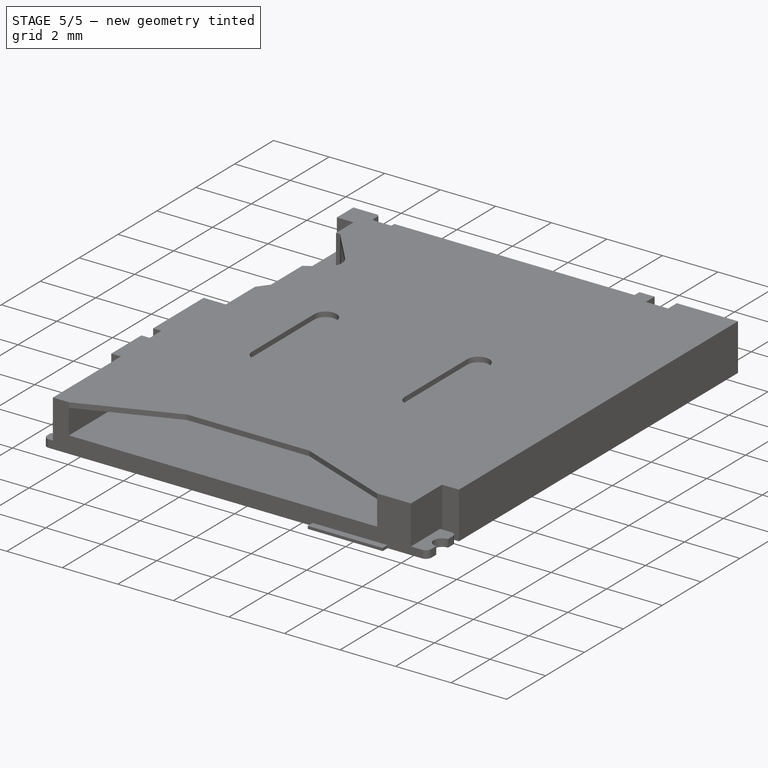
[diagram: stage 5 of 5 — iso view after this stage's code; geometry added in this stage tinted green]
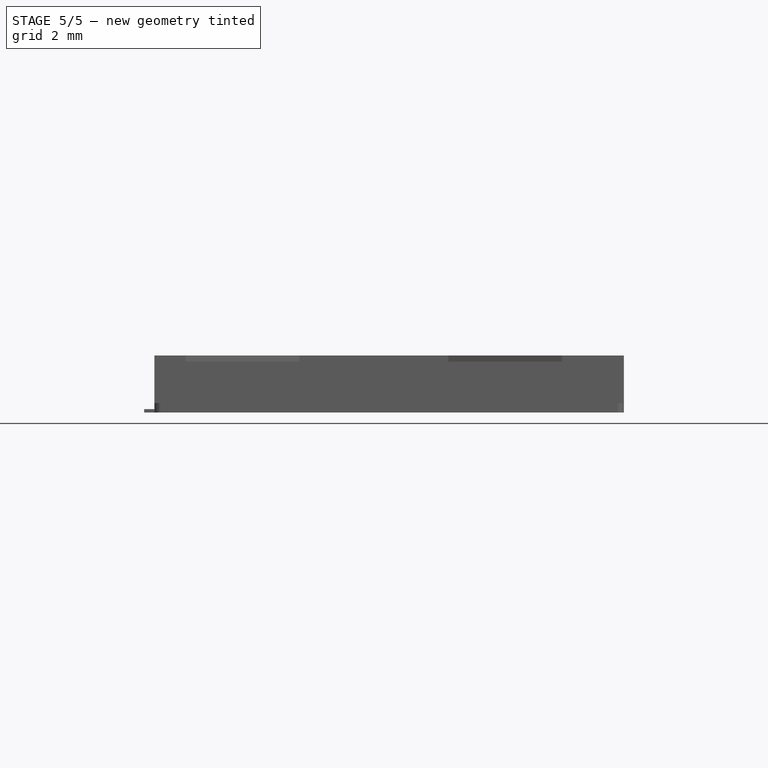
[diagram: stage 5 of 5 — front view after this stage's code; geometry added in this stage tinted green]
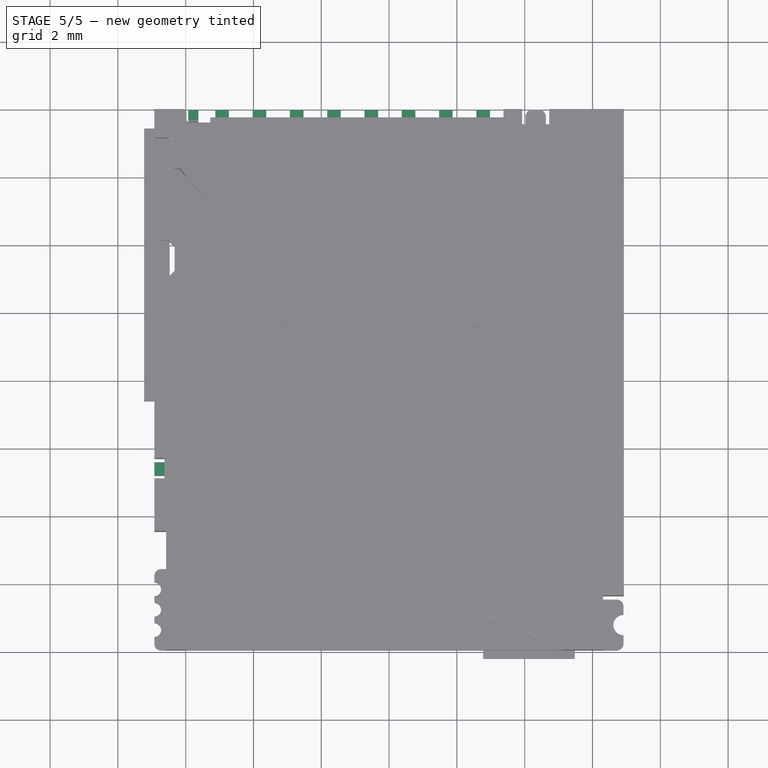
[diagram: stage 5 of 5 — top view after this stage's code; geometry added in this stage tinted green]
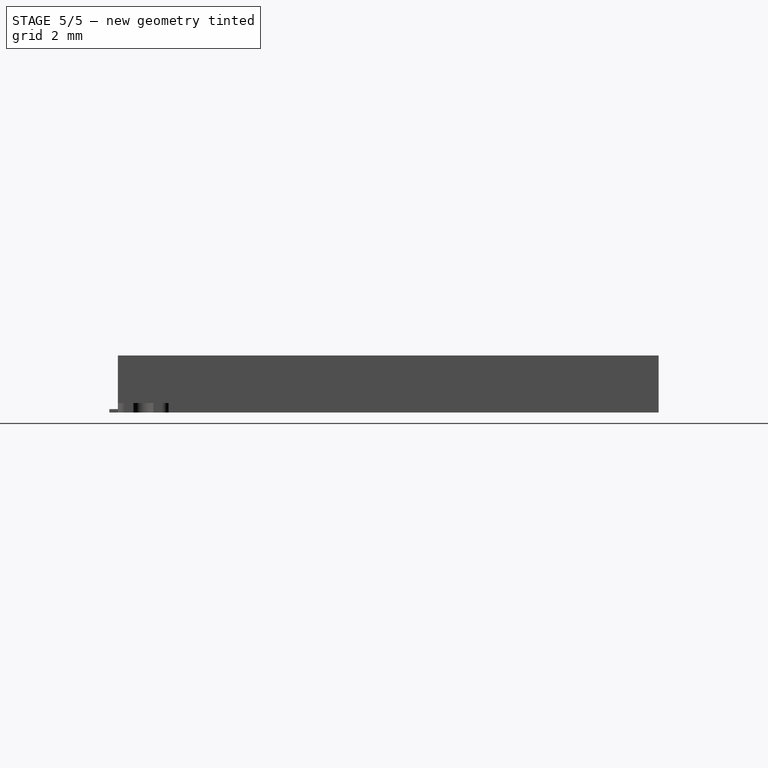
[diagram: stage 5 of 5 — right view after this stage's code; geometry added in this stage tinted green]
FEATURE [Sketcher::SketchObject] Sketch009  label="PinsBack"
  sketch-geometry (44):
    g0: LineSegment StartX=-4.025 StartY=0 StartZ=0 EndX=-3.625 EndY=0 EndZ=0
    g1: LineSegment StartX=-3.625 StartY=0 StartZ=0 EndX=-3.625 EndY=-0.3 EndZ=0
    g2: LineSegment StartX=-3.625 StartY=-0.3 StartZ=0 EndX=-4.025 EndY=-0.3 EndZ=0
    g3: LineSegment StartX=-4.025 StartY=-0.3 StartZ=0 EndX=-4.025 EndY=0 EndZ=0
    g4: LineSegment StartX=2.575 StartY=0 StartZ=0 EndX=2.975 EndY=0 EndZ=0
    g5: LineSegment StartX=2.975 StartY=0 StartZ=0 EndX=2.975 EndY=-0.3 EndZ=0
    g6: LineSegment StartX=2.975 StartY=-0.3 StartZ=0 EndX=2.575 EndY=-0.3 EndZ=0
    g7: LineSegment StartX=2.575 StartY=-0.3 StartZ=0 EndX=2.575 EndY=0 EndZ=0
    g8: LineSegment [constr] StartX=-4.925 StartY=0 StartZ=0 EndX=-3.825 EndY=0 EndZ=0
    g9: LineSegment [constr] StartX=-3.825 StartY=0 StartZ=0 EndX=-2.725 EndY=0 EndZ=0
    g10: LineSegment [constr] StartX=-2.725 StartY=0 StartZ=0 EndX=-1.625 EndY=0 EndZ=0
    g11: LineSegment [constr] StartX=-1.625 StartY=0 StartZ=0 EndX=-0.525 EndY=0 EndZ=0
    g12: LineSegment [constr] StartX=-0.525 StartY=0 StartZ=0 EndX=0.575 EndY=0 EndZ=0
    g13: LineSegment [constr] StartX=0.575 StartY=0 StartZ=0 EndX=1.675 EndY=0 EndZ=0
    g14: LineSegment [constr] StartX=1.675 StartY=0 StartZ=0 EndX=2.775 EndY=0 EndZ=0
    g15: LineSegment [constr] StartX=-4.925 StartY=0 StartZ=0 EndX=-5.775 EndY=0 EndZ=0
    g16: LineSegment StartX=-2.925 StartY=0 StartZ=0 EndX=-2.525 EndY=0 EndZ=0
    g17: LineSegment StartX=-2.525 StartY=0 StartZ=0 EndX=-2.525 EndY=-0.3 EndZ=0
    g18: LineSegment StartX=-2.525 StartY=-0.3 StartZ=0 EndX=-2.925 EndY=-0.3 EndZ=0
    g19: LineSegment StartX=-2.925 StartY=-0.3 StartZ=0 EndX=-2.925 EndY=0 EndZ=0
    g20: LineSegment StartX=-1.825 StartY=0 StartZ=0 EndX=-1.425 EndY=0 EndZ=0
    g21: LineSegment StartX=-1.425 StartY=0 StartZ=0 EndX=-1.425 EndY=-0.3 EndZ=0
    g22: LineSegment StartX=-1.425 StartY=-0.3 StartZ=0 EndX=-1.825 EndY=-0.3 EndZ=0
    g23: LineSegment StartX=-1.825 StartY=-0.3 StartZ=0 EndX=-1.825 EndY=0 EndZ=0
    g24: LineSegment StartX=-0.725 StartY=0 StartZ=0 EndX=-0.325 EndY=0 EndZ=0
    g25: LineSegment StartX=-0.325 StartY=0 StartZ=0 EndX=-0.325 EndY=-0.3 EndZ=0
    g26: LineSegment StartX=-0.325 StartY=-0.3 StartZ=0 EndX=-0.725 EndY=-0.3 EndZ=0
    g27: LineSegment StartX=-0.725 StartY=-0.3 StartZ=0 EndX=-0.725 EndY=0 EndZ=0
    g28: LineSegment StartX=0.375 StartY=0 StartZ=0 EndX=0.775 EndY=0 EndZ=0
    g29: LineSegment StartX=0.775 StartY=0 StartZ=0 EndX=0.775 EndY=-0.3 EndZ=0
    g30: LineSegment StartX=0.775 StartY=-0.3 StartZ=0 EndX=0.375 EndY=-0.3 EndZ=0
    g31: LineSegment StartX=0.375 StartY=-0.3 StartZ=0 EndX=0.375 EndY=0 EndZ=0
    g32: LineSegment StartX=1.475 StartY=0 StartZ=0 EndX=1.875 EndY=0 EndZ=0
    g33: LineSegment StartX=1.875 StartY=0 StartZ=0 EndX=1.875 EndY=-0.3 EndZ=0
    g34: LineSegment StartX=1.875 StartY=-0.3 StartZ=0 EndX=1.475 EndY=-0.3 EndZ=0
    g35: LineSegment StartX=1.475 StartY=-0.3 StartZ=0 EndX=1.475 EndY=0 EndZ=0
    g36: LineSegment StartX=-5.125 StartY=0 StartZ=0 EndX=-4.725 EndY=0 EndZ=0
    g37: LineSegment StartX=-4.725 StartY=0 StartZ=0 EndX=-4.725 EndY=-0.3 EndZ=0
    g38: LineSegment StartX=-4.725 StartY=-0.3 StartZ=0 EndX=-5.125 EndY=-0.3 EndZ=0
    g39: LineSegment StartX=-5.125 StartY=-0.3 StartZ=0 EndX=-5.125 EndY=0 EndZ=0
    g40: LineSegment StartX=-5.925 StartY=0 StartZ=0 EndX=-5.625 EndY=0 EndZ=0
    g41: LineSegment StartX=-5.625 StartY=0 StartZ=0 EndX=-5.625 EndY=-0.3 EndZ=0
    g42: LineSegment StartX=-5.625 StartY=-0.3 StartZ=0 EndX=-5.925 EndY=-0.3 EndZ=0
    g43: LineSegment StartX=-5.925 StartY=-0.3 StartZ=0 EndX=-5.925 EndY=0 EndZ=0
  constraints (125):
    c: Coincident(g0,g1)
    c: Coincident(g1,g2)
    c: Coincident(g2,g3)
    c: Coincident(g3,g0)
    c: Horizontal(g0)
    c: Horizontal(g2)
    c: Vertical(g1)
    c: Vertical(g3)
    c: Coincident(g4,g5)
    c: Coincident(g5,g6)
    c: Coincident(g6,g7)
    c: Coincident(g7,g4)
    c: Horizontal(g4)
    c: Horizontal(g6)
    c: Vertical(g5)
    c: Vertical(g7)
    c: Horizontal(g8)
    c: Coincident(g8,g9)
    c: Horizontal(g9)
    c: Coincident(g9,g10)
    c: Horizontal(g10)
    c: Coincident(g10,g11)
    c: Horizontal(g11)
    c: Coincident(g11,g12)
    c: Horizontal(g12)
    c: Coincident(g12,g13)
    c: Horizontal(g13)
    c: Coincident(g13,g14)
    c: Horizontal(g14)
    c: Equal(g8,g9)
    c: Equal(g9,g10)
    c: Equal(g10,g11)
    c: Equal(g11,g12)
    c: Equal(g12,g13)
    c: Equal(g13,g14)
    c: DistanceX(g8) = 1.1
    c: Coincident(g15,g8)
    c: Horizontal(g15)
    c: DistanceY(g5) = -0.3
    c: DistanceX(g4) = 0.4
    c: Coincident(g16,g17)
    c: Coincident(g17,g18)
    c: Coincident(g18,g19)
    c: Coincident(g19,g16)
    c: Horizontal(g16)
    c: Horizontal(g18)
    c: Vertical(g17)
    c: Vertical(g19)
    c: Coincident(g20,g21)
    c: Coincident(g21,g22)
    c: Coincident(g22,g23)
    c: Coincident(g23,g20)
    c: Horizontal(g20)
    c: Horizontal(g22)
    c: Vertical(g21)
    c: Vertical(g23)
    c: Coincident(g24,g25)
    c: Coincident(g25,g26)
    c: Coincident(g26,g27)
    c: Coincident(g27,g24)
    c: Horizontal(g24)
    c: Horizontal(g26)
    c: Vertical(g25)
    c: Vertical(g27)
    c: Coincident(g28,g29)
    c: Coincident(g29,g30)
    c: Coincident(g30,g31)
    c: Coincident(g31,g28)
    c: Horizontal(g28)
    c: Horizontal(g30)
    c: Vertical(g29)
    c: Vertical(g31)
    c: Coincident(g32,g33)
    c: Coincident(g33,g34)
    c: Coincident(g34,g35)
    c: Coincident(g35,g32)
    c: Horizontal(g32)
    c: Horizontal(g34)
    c: Vertical(g33)
    c: Vertical(g35)
    c: Coincident(g36,g37)
    c: Coincident(g37,g38)
    c: Coincident(g38,g39)
    c: Coincident(g39,g36)
    c: Horizontal(g36)
    c: Horizontal(g38)
    c: Vertical(g37)
    c: Vertical(g39)
    c: Equal(g36,g0)
    c: Equal(g0,g16)
    c: Equal(g16,g20)
    c: Equal(g20,g24)
    c: Equal(g24,g28)
    c: Equal(g28,g32)
    c: Equal(g32,g4)
    c: Equal(g37,g1)
    c: Equal(g1,g17)
    c: Equal(g17,g21)
    c: Equal(g21,g25)
    c: Equal(g25,g29)
    c: Equal(g29,g33)
    c: Equal(g33,g5)
    c: Symmetric(g36,g36,g8)
    c: Symmetric(g0,g0,g8)
    c: Symmetric(g16,g16,g9)
    c: Symmetric(g20,g20,g10)
    c: Symmetric(g24,g24,g11)
    c: Symmetric(g28,g28,g12)
    c: Symmetric(g32,g32,g13)
    c: Symmetric(g4,g4,g14)
    c: PointOnObject(g-1,g12)
    c: DistanceX(g-1,g37) = -4.725
    c: Coincident(g40,g41)
    c: Coincident(g41,g42)
    c: Coincident(g42,g43)
    c: Coincident(g43,g40)
    c: Horizontal(g40)
    c: Horizontal(g42)
    c: Vertical(g41)
    c: Vertical(g43)
    c: DistanceX(g40) = 0.3
    c: Equal(g41,g5)
    c: Symmetric(g40,g40,g15)
    c: DistanceX(g15,g8) = 0.85
    c: DistanceX(g40,g36) = 0.9
FEATURE [PartDesign::Pad] Pad001  label="Pins_Pad"
  Length = 0.4
  Length2 = 100
  Sketch = -> Sketch009
  Type = 0
FEATURE [Sketcher::SketchObject] Sketch011  label="Pin_CardDetect"
  sketch-geometry (5):
    g0: LineSegment StartX=-6.925 StartY=-10.4 StartZ=0 EndX=-6.575 EndY=-10.4 EndZ=0
    g1: LineSegment StartX=-6.575 StartY=-10.4 StartZ=0 EndX=-6.575 EndY=-10.8 EndZ=0
    g2: LineSegment StartX=-6.575 StartY=-10.8 StartZ=0 EndX=-6.925 EndY=-10.8 EndZ=0
    g3: LineSegment StartX=-6.925 StartY=-10.8 StartZ=0 EndX=-6.925 EndY=-10.4 EndZ=0
    g4: GeomPoint [constr] X=-6.925 Y=-10.6 Z=0
  constraints (13):
    c: Coincident(g0,g1)
    c: Coincident(g1,g2)
    c: Coincident(g2,g3)
    c: Coincident(g3,g0)
    c: Horizontal(g0)
    c: Horizontal(g2)
    c: Vertical(g1)
    c: Vertical(g3)
    c: DistanceY(g3) = 0.4
    c: DistanceX(g0) = 0.35
    c: Symmetric(g3,g3,g4)
    c: DistanceX(g4) = -6.925
    c: DistanceY(g4) = -10.6
FEATURE [PartDesign::Pad] Pad002  label="Pin_CardDetect_Pad"
  Length = 0.4
  Length2 = 100
  Sketch = -> Sketch011
  Type = 0
FEATURE [Part::MultiFuse] Fusion
  Shapes = -> [Pocket008,Sweep001,Array,Pad002]
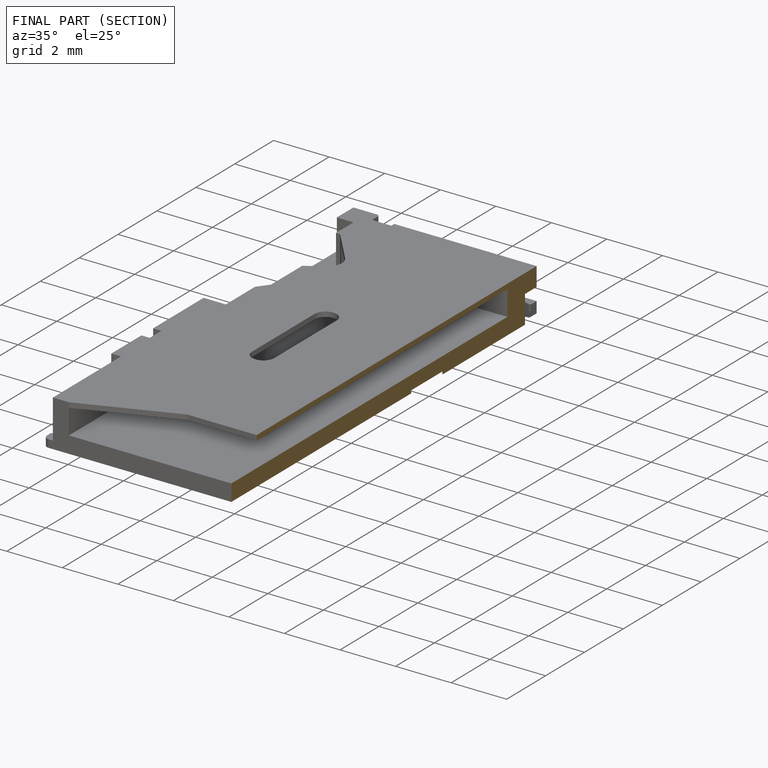
[diagram: finished part — half-section view (interior)]
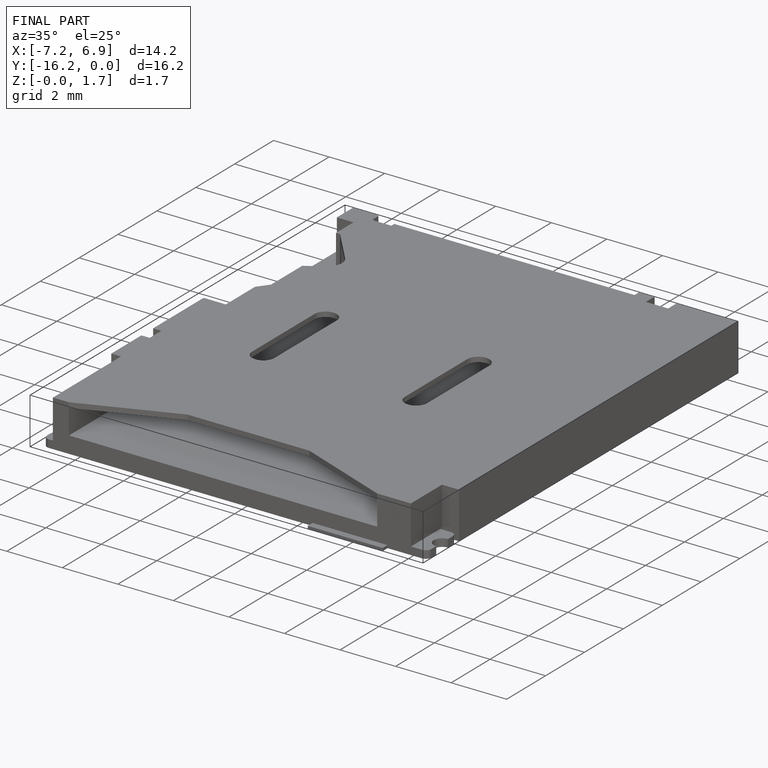
[diagram: finished part — iso view with bounding-box wireframe]
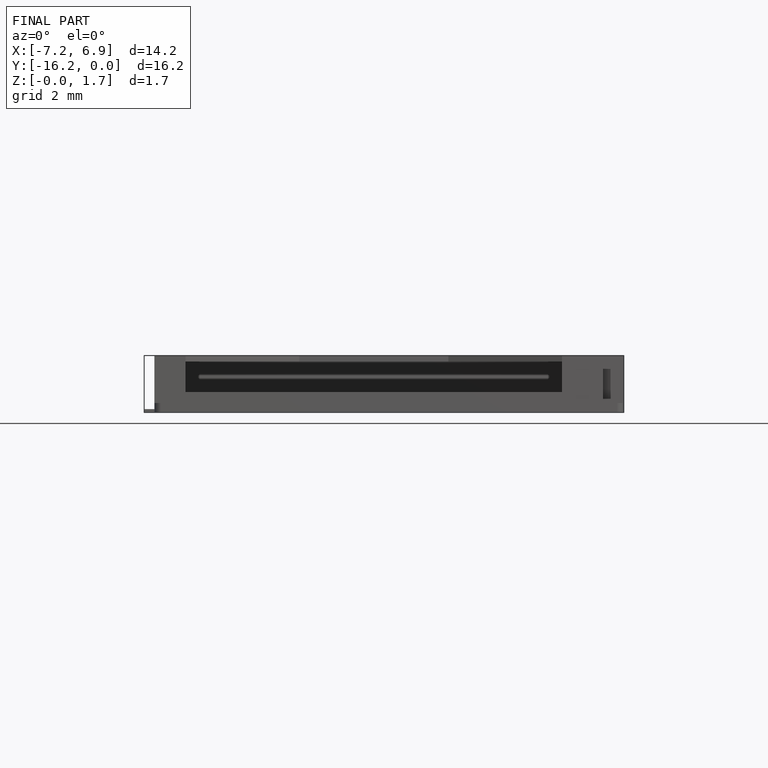
[diagram: finished part — front view with bounding-box wireframe]
